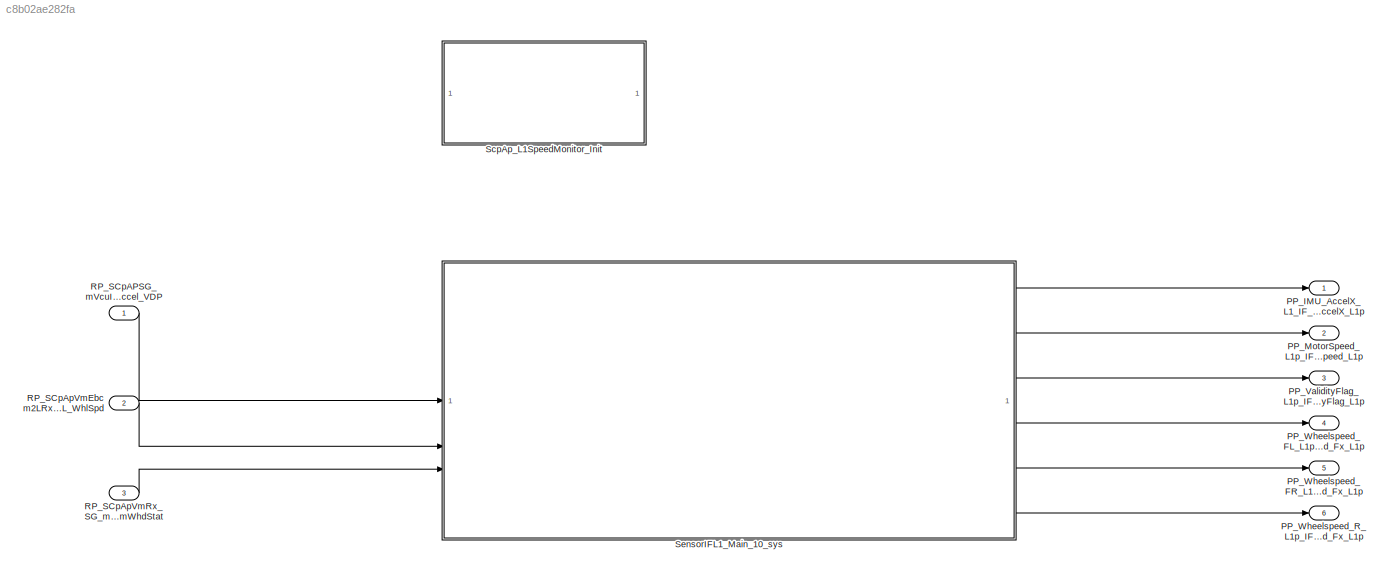
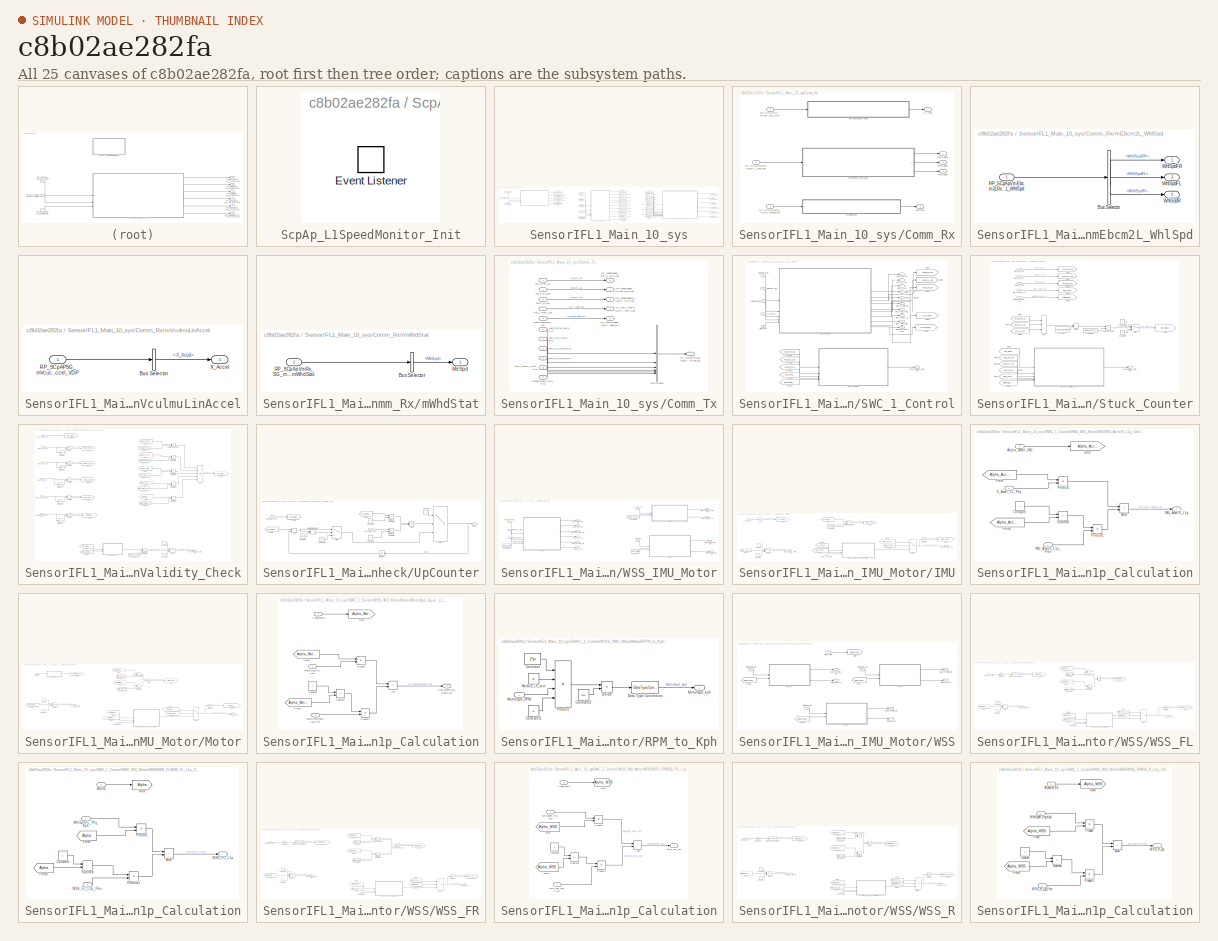
[diagram: thumbnail index - all 25 canvases of the model, root first then tree order]
MODEL slx_c8b02ae282fa
KIND model
CONFIG AbsTol = auto
CONFIG EnableMultiTasking = off
CONFIG FixedStep = 0.01
CONFIG MaxStep = auto
CONFIG MinStep = auto
CONFIG RelTol = 1e-3
CONFIG SampleTimeConstraint = Unconstrained
CONFIG SolverName = FixedStepDiscrete
CONFIG StartTime = 0.0
CONFIG StopTime = 10.0
WORKSPACE source: mxarray member
WORKSPACE Accel_Max: Simulink.Parameter (value not decoded)
WORKSPACE Alpha_Accel_IMU: Simulink.Parameter (value not decoded)
WORKSPACE Alpha_Motor: Simulink.Parameter (value not decoded)
WORKSPACE Alpha_WSS: Simulink.Parameter (value not decoded)
WORKSPACE Motor_Spd_Max: Simulink.Parameter (value not decoded)
WORKSPACE Motor_Spd_Min: Simulink.Parameter (value not decoded)
BLOCK [Outport] PP_IMU_AccelX_L1_IF_IMU_AccelX_L1p
  OutDataTypeStr = single
  PortDimensions = 1
  SamplingMode = Sample based
  SignalType = real
BLOCK [Outport] PP_MotorSpeed_L1p_IF_MotorSpeed_L1p
  OutDataTypeStr = uint8
  Port = 2
  PortDimensions = 1
  SamplingMode = Sample based
  SignalType = real
BLOCK [Outport] PP_ValidityFlag_L1p_IF_ValidityFlag_L1p
  BusOutputAsStruct = on
  OutDataTypeStr = Bus: IF_ValidityFlag_L1p_IDT
  Port = 3
  PortDimensions = 1
  SamplingMode = Sample based
BLOCK [Outport] PP_Wheelspeed_FL_L1p_IF_Wheelspeed_Fx_L1p
  OutDataTypeStr = uint16
  Port = 4
  PortDimensions = 1
  SamplingMode = Sample based
  SignalType = real
BLOCK [Outport] PP_Wheelspeed_FR_L1p_IF_Wheelspeed_Fx_L1p
  OutDataTypeStr = uint16
  Port = 5
  PortDimensions = 1
  SamplingMode = Sample based
  SignalType = real
BLOCK [Outport] PP_Wheelspeed_R_L1p_IF_Wheelspeed_Fx_L1p
  OutDataTypeStr = uint16
  Port = 6
  PortDimensions = 1
  SamplingMode = Sample based
  SignalType = real
BLOCK [Inport] RP_SCpAPSG_mVcuImuLinAccel_SG_mVcuImuLinAccel_VDP
  BusOutputAsStruct = on
  OutDataTypeStr = Bus: SG_mVcuImuLinAccel_IDT
  PortDimensions = 1
  SamplingMode = Sample based
BLOCK [Inport] RP_SCpApVmEbcm2LRx_SG_mEbcm2L_WhlSpd_SG_mEbcm2L_WhlSpd
  BusOutputAsStruct = on
  OutDataTypeStr = Bus: SG_mEbcm2L_WhlSpd_IDT_E2E
  Port = 2
  PortDimensions = 1
  SamplingMode = Sample based
BLOCK [Inport] RP_SCpApVmRx_SG_mWhdStat_SG_mWhdStat
  BusOutputAsStruct = on
  OutDataTypeStr = Bus: SG_mWhdStat_IDT_E2E
  Port = 3
  PortDimensions = 1
  SamplingMode = Sample based
BLOCK [SubSystem] ScpAp_L1SpeedMonitor_Init
BLOCK [EventListener] ScpAp_L1SpeedMonitor_Init/Event Listener
  EventName = reset
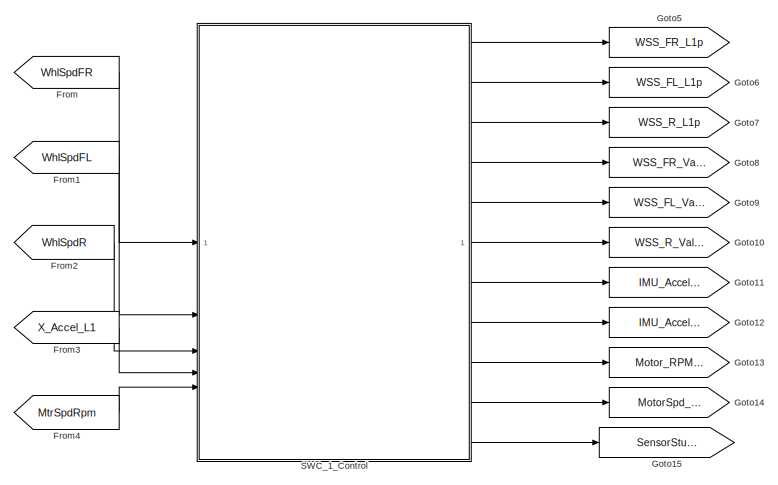
[diagram: SensorIFL1_Main_10_sys - part 1/3, center side, full height]
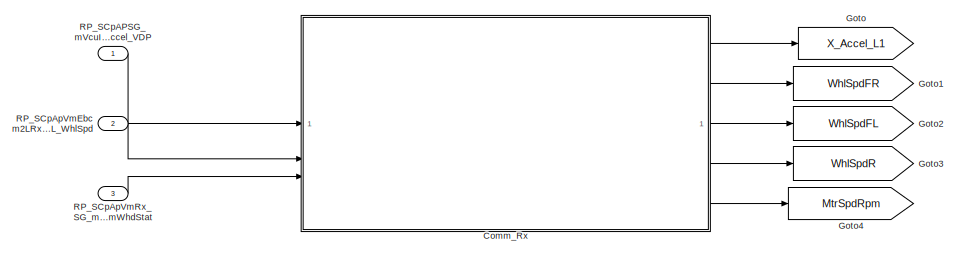
[diagram: SensorIFL1_Main_10_sys - part 2/3, top left region]
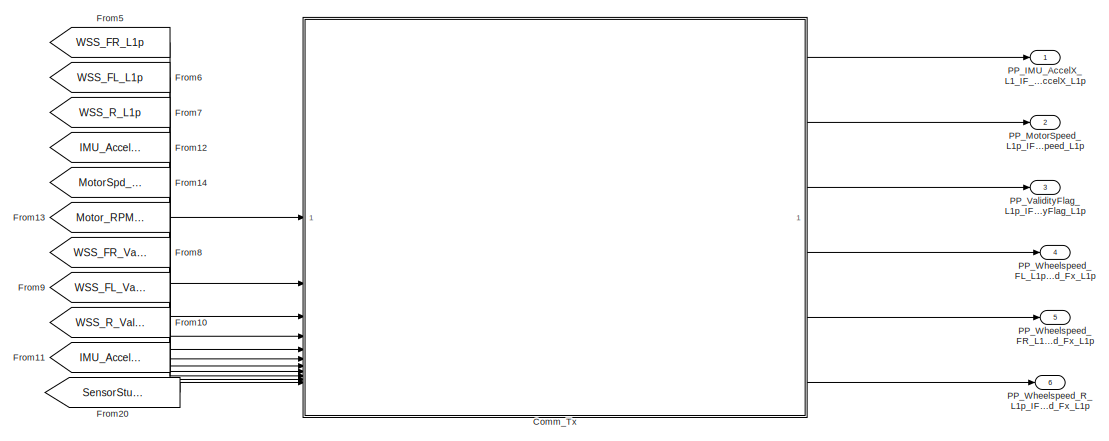
[diagram: SensorIFL1_Main_10_sys - part 3/3, right side, full height]
BLOCK [SubSystem] SensorIFL1_Main_10_sys
  SystemSampleTime = 0.01
  TreatAsAtomicUnit = on
BLOCK [SubSystem] SensorIFL1_Main_10_sys/Comm_Rx
  TreatAsAtomicUnit = on
BLOCK [Outport] SensorIFL1_Main_10_sys/Comm_Rx/MtrSpd
  Port = 5
BLOCK [Inport] SensorIFL1_Main_10_sys/Comm_Rx/RP_SCpAPSG_mVcuImuLinAccel_SG_mVcuImuLinAccel_VDP
BLOCK [Inport] SensorIFL1_Main_10_sys/Comm_Rx/RP_SCpApVmEbcm2LRx_SG_mEbcm2L_WhlSpd_SG_mEbcm2L_WhlSpd
  Port = 2
BLOCK [Inport] SensorIFL1_Main_10_sys/Comm_Rx/RP_SCpApVmRx_SG_mWhdStat_SG_mWhdStat
  Port = 3
BLOCK [Outport] SensorIFL1_Main_10_sys/Comm_Rx/WhlSpdFL
  Port = 3
BLOCK [Outport] SensorIFL1_Main_10_sys/Comm_Rx/WhlSpdFR
  Port = 2
BLOCK [Outport] SensorIFL1_Main_10_sys/Comm_Rx/WhlSpdR
  Port = 4
BLOCK [Outport] SensorIFL1_Main_10_sys/Comm_Rx/X_Accel
BLOCK [SubSystem] SensorIFL1_Main_10_sys/Comm_Rx/mEbcm2L_WhlSpd
  TreatAsAtomicUnit = on
BLOCK [BusSelector] SensorIFL1_Main_10_sys/Comm_Rx/mEbcm2L_WhlSpd/Bus Selector
  OutputSignals = WhlSpdFR,WhlSpdFL,WhlSpdR
BLOCK [Inport] SensorIFL1_Main_10_sys/Comm_Rx/mEbcm2L_WhlSpd/RP_SCpApVmEbcm2LRx_SG_mEbcm2L_WhlSpd_SG_mEbcm2L_WhlSpd
BLOCK [Outport] SensorIFL1_Main_10_sys/Comm_Rx/mEbcm2L_WhlSpd/WhlSpdFL
  Port = 2
BLOCK [Outport] SensorIFL1_Main_10_sys/Comm_Rx/mEbcm2L_WhlSpd/WhlSpdFR
BLOCK [Outport] SensorIFL1_Main_10_sys/Comm_Rx/mEbcm2L_WhlSpd/WhlSpdR
  Port = 3
BLOCK [SubSystem] SensorIFL1_Main_10_sys/Comm_Rx/mVculmuLinAccel
  TreatAsAtomicUnit = on
BLOCK [BusSelector] SensorIFL1_Main_10_sys/Comm_Rx/mVculmuLinAccel/Bus Selector
  OutputSignals = X_Accel
BLOCK [Inport] SensorIFL1_Main_10_sys/Comm_Rx/mVculmuLinAccel/RP_SCpAPSG_mVcuImuLinAccel_SG_mVcuImuLinAccel_VDP
BLOCK [Outport] SensorIFL1_Main_10_sys/Comm_Rx/mVculmuLinAccel/X_Accel
BLOCK [SubSystem] SensorIFL1_Main_10_sys/Comm_Rx/mWhdStat
  TreatAsAtomicUnit = on
BLOCK [BusSelector] SensorIFL1_Main_10_sys/Comm_Rx/mWhdStat/Bus Selector
  OutputSignals = MtrSpd
BLOCK [Outport] SensorIFL1_Main_10_sys/Comm_Rx/mWhdStat/MtrSpd
BLOCK [Inport] SensorIFL1_Main_10_sys/Comm_Rx/mWhdStat/RP_SCpApVmRx_SG_mWhdStat_SG_mWhdStat
BLOCK [SubSystem] SensorIFL1_Main_10_sys/Comm_Tx
  TreatAsAtomicUnit = on
BLOCK [BusCreator] SensorIFL1_Main_10_sys/Comm_Tx/Bus Creator
  DisplayOption = bar
  InheritFromInputs = on
  Inputs = 6
BLOCK [Inport] SensorIFL1_Main_10_sys/Comm_Tx/IMU_AccelX_L1p
  Port = 4
BLOCK [Inport] SensorIFL1_Main_10_sys/Comm_Tx/IMU_AccelX_Valid_Flg
  Port = 10
BLOCK [Inport] SensorIFL1_Main_10_sys/Comm_Tx/MotorSpd_Equiv_L1p
  Port = 5
BLOCK [Inport] SensorIFL1_Main_10_sys/Comm_Tx/Motor_RPM_Valid_Flg
  Port = 6
BLOCK [Outport] SensorIFL1_Main_10_sys/Comm_Tx/PP_IMU_AccelX_L1_IF_IMU_AccelX_L1p
BLOCK [Outport] SensorIFL1_Main_10_sys/Comm_Tx/PP_MotorSpeed_L1p_IF_MotorSpeed_L1p
  Port = 2
BLOCK [Outport] SensorIFL1_Main_10_sys/Comm_Tx/PP_ValidityFlag_L1p_IF_ValidityFlag_L1p
  Port = 3
BLOCK [Outport] SensorIFL1_Main_10_sys/Comm_Tx/PP_Wheelspeed_FL_L1p_IF_Wheelspeed_Fx_L1p
  Port = 4
BLOCK [Outport] SensorIFL1_Main_10_sys/Comm_Tx/PP_Wheelspeed_FR_L1p_IF_Wheelspeed_Fx_L1p
  Port = 5
BLOCK [Outport] SensorIFL1_Main_10_sys/Comm_Tx/PP_Wheelspeed_R_L1p_IF_Wheelspeed_Fx_L1p
  Port = 6
BLOCK [Inport] SensorIFL1_Main_10_sys/Comm_Tx/SensorStuck_Valid_Flg
  Port = 11
BLOCK [Inport] SensorIFL1_Main_10_sys/Comm_Tx/WSS_FL_L1p
  Port = 2
BLOCK [Inport] SensorIFL1_Main_10_sys/Comm_Tx/WSS_FL_Valid_Flg
  Port = 8
BLOCK [Inport] SensorIFL1_Main_10_sys/Comm_Tx/WSS_FR_L1p
BLOCK [Inport] SensorIFL1_Main_10_sys/Comm_Tx/WSS_FR_Valid_Flg
  Port = 7
BLOCK [Inport] SensorIFL1_Main_10_sys/Comm_Tx/WSS_R_L1p
  Port = 3
BLOCK [Inport] SensorIFL1_Main_10_sys/Comm_Tx/WSS_R_Valid_Flg
  Port = 9
BLOCK [From] SensorIFL1_Main_10_sys/From
  GotoTag = WhlSpdFR
BLOCK [From] SensorIFL1_Main_10_sys/From1
  GotoTag = WhlSpdFL
BLOCK [From] SensorIFL1_Main_10_sys/From10
  GotoTag = WSS_R_Valid_Flg
BLOCK [From] SensorIFL1_Main_10_sys/From11
  GotoTag = IMU_AccelX_Valid_Flg
BLOCK [From] SensorIFL1_Main_10_sys/From12
  GotoTag = IMU_AccelX_L1p
BLOCK [From] SensorIFL1_Main_10_sys/From13
  GotoTag = Motor_RPM_Vlaid_Flg
BLOCK [From] SensorIFL1_Main_10_sys/From14
  GotoTag = MotorSpd_Equiv_L1p
BLOCK [From] SensorIFL1_Main_10_sys/From2
  GotoTag = WhlSpdR
BLOCK [From] SensorIFL1_Main_10_sys/From20
  GotoTag = SensorStuck_Valid_Flg
BLOCK [From] SensorIFL1_Main_10_sys/From3
  GotoTag = X_Accel_L1
BLOCK [From] SensorIFL1_Main_10_sys/From4
  GotoTag = MtrSpdRpm
BLOCK [From] SensorIFL1_Main_10_sys/From5
  GotoTag = WSS_FR_L1p
BLOCK [From] SensorIFL1_Main_10_sys/From6
  GotoTag = WSS_FL_L1p
BLOCK [From] SensorIFL1_Main_10_sys/From7
  GotoTag = WSS_R_L1p
BLOCK [From] SensorIFL1_Main_10_sys/From8
  GotoTag = WSS_FR_Valid_Flg
BLOCK [From] SensorIFL1_Main_10_sys/From9
  GotoTag = WSS_FL_Valid_Flg
BLOCK [Goto] SensorIFL1_Main_10_sys/Goto
  GotoTag = X_Accel_L1
BLOCK [Goto] SensorIFL1_Main_10_sys/Goto1
  GotoTag = WhlSpdFR
BLOCK [Goto] SensorIFL1_Main_10_sys/Goto10
  GotoTag = WSS_R_Valid_Flg
BLOCK [Goto] SensorIFL1_Main_10_sys/Goto11
  GotoTag = IMU_AccelX_Valid_Flg
BLOCK [Goto] SensorIFL1_Main_10_sys/Goto12
  GotoTag = IMU_AccelX_L1p
BLOCK [Goto] SensorIFL1_Main_10_sys/Goto13
  GotoTag = Motor_RPM_Vlaid_Flg
BLOCK [Goto] SensorIFL1_Main_10_sys/Goto14
  GotoTag = MotorSpd_Equiv_L1p
BLOCK [Goto] SensorIFL1_Main_10_sys/Goto15
  GotoTag = SensorStuck_Valid_Flg
BLOCK [Goto] SensorIFL1_Main_10_sys/Goto2
  GotoTag = WhlSpdFL
BLOCK [Goto] SensorIFL1_Main_10_sys/Goto3
  GotoTag = WhlSpdR
BLOCK [Goto] SensorIFL1_Main_10_sys/Goto4
  GotoTag = MtrSpdRpm
BLOCK [Goto] SensorIFL1_Main_10_sys/Goto5
  GotoTag = WSS_FR_L1p
BLOCK [Goto] SensorIFL1_Main_10_sys/Goto6
  GotoTag = WSS_FL_L1p
BLOCK [Goto] SensorIFL1_Main_10_sys/Goto7
  GotoTag = WSS_R_L1p
BLOCK [Goto] SensorIFL1_Main_10_sys/Goto8
  GotoTag = WSS_FR_Valid_Flg
BLOCK [Goto] SensorIFL1_Main_10_sys/Goto9
  GotoTag = WSS_FL_Valid_Flg
BLOCK [Outport] SensorIFL1_Main_10_sys/PP_IMU_AccelX_L1_IF_IMU_AccelX_L1p
BLOCK [Outport] SensorIFL1_Main_10_sys/PP_MotorSpeed_L1p_IF_MotorSpeed_L1p
  Port = 2
BLOCK [Outport] SensorIFL1_Main_10_sys/PP_ValidityFlag_L1p_IF_ValidityFlag_L1p
  Port = 3
BLOCK [Outport] SensorIFL1_Main_10_sys/PP_Wheelspeed_FL_L1p_IF_Wheelspeed_Fx_L1p
  Port = 4
BLOCK [Outport] SensorIFL1_Main_10_sys/PP_Wheelspeed_FR_L1p_IF_Wheelspeed_Fx_L1p
  Port = 5
BLOCK [Outport] SensorIFL1_Main_10_sys/PP_Wheelspeed_R_L1p_IF_Wheelspeed_Fx_L1p
  Port = 6
BLOCK [Inport] SensorIFL1_Main_10_sys/RP_SCpAPSG_mVcuImuLinAccel_SG_mVcuImuLinAccel_VDP
BLOCK [Inport] SensorIFL1_Main_10_sys/RP_SCpApVmEbcm2LRx_SG_mEbcm2L_WhlSpd_SG_mEbcm2L_WhlSpd
  Port = 2
BLOCK [Inport] SensorIFL1_Main_10_sys/RP_SCpApVmRx_SG_mWhdStat_SG_mWhdStat
  Port = 3
BLOCK [SubSystem] SensorIFL1_Main_10_sys/SWC_1_Control
  TreatAsAtomicUnit = on
BLOCK [From] SensorIFL1_Main_10_sys/SWC_1_Control/From15
  GotoTag = WSS_FR_L1p
BLOCK [From] SensorIFL1_Main_10_sys/SWC_1_Control/From16
  GotoTag = WSS_FL_L1p
BLOCK [From] SensorIFL1_Main_10_sys/SWC_1_Control/From17
  GotoTag = WSS_R_L1p
BLOCK [From] SensorIFL1_Main_10_sys/SWC_1_Control/From18
  GotoTag = IMU_AccelX_L1p
BLOCK [From] SensorIFL1_Main_10_sys/SWC_1_Control/From19
  GotoTag = MotorSpd_Equiv_L1p
BLOCK [Goto] SensorIFL1_Main_10_sys/SWC_1_Control/Goto
  GotoTag = WSS_R_L1p
BLOCK [Goto] SensorIFL1_Main_10_sys/SWC_1_Control/Goto1
  GotoTag = WSS_FL_L1p
BLOCK [Goto] SensorIFL1_Main_10_sys/SWC_1_Control/Goto2
  GotoTag = MotorSpd_Equiv_L1p
BLOCK [Goto] SensorIFL1_Main_10_sys/SWC_1_Control/Goto3
  GotoTag = IMU_AccelX_L1p
BLOCK [Goto] SensorIFL1_Main_10_sys/SWC_1_Control/Goto4
  GotoTag = WSS_FR_L1p
BLOCK [Outport] SensorIFL1_Main_10_sys/SWC_1_Control/IMU_AccelX_L1p
  Port = 8
BLOCK [Outport] SensorIFL1_Main_10_sys/SWC_1_Control/IMU_AccelX_Valid_Flg
  Port = 7
BLOCK [Inport] SensorIFL1_Main_10_sys/SWC_1_Control/MotorRpm
  Port = 5
BLOCK [Outport] SensorIFL1_Main_10_sys/SWC_1_Control/MotorSpd_Equiv_L1p1
  Port = 10
BLOCK [Outport] SensorIFL1_Main_10_sys/SWC_1_Control/Motor_RPM_Vlaid_Flg
  Port = 9
BLOCK [Outport] SensorIFL1_Main_10_sys/SWC_1_Control/SensorStuck_Valid_Flg
  Port = 11
BLOCK [SubSystem] SensorIFL1_Main_10_sys/SWC_1_Control/Stuck_Counter
  TreatAsAtomicUnit = on
BLOCK [Constant] SensorIFL1_Main_10_sys/SWC_1_Control/Stuck_Counter/Constant
  Value = WSS_Avg_Spd
BLOCK [Constant] SensorIFL1_Main_10_sys/SWC_1_Control/Stuck_Counter/Constant1
  Value = Wheel_Spd_Th
BLOCK [Constant] SensorIFL1_Main_10_sys/SWC_1_Control/Stuck_Counter/Constant2
  OutDataTypeStr = boolean
BLOCK [Constant] SensorIFL1_Main_10_sys/SWC_1_Control/Stuck_Counter/Constant3
  OutDataTypeStr = boolean
  Value = 0
BLOCK [Product] SensorIFL1_Main_10_sys/SWC_1_Control/Stuck_Counter/Divide
  Inputs = */
BLOCK [From] SensorIFL1_Main_10_sys/SWC_1_Control/Stuck_Counter/From
  GotoTag = WSS_FR_L1p
BLOCK [From] SensorIFL1_Main_10_sys/SWC_1_Control/Stuck_Counter/From1
  GotoTag = WSS_FL_L1p
BLOCK [From] SensorIFL1_Main_10_sys/SWC_1_Control/Stuck_Counter/From2
  GotoTag = WSS_R_L1p
BLOCK [From] SensorIFL1_Main_10_sys/SWC_1_Control/Stuck_Counter/From3
  GotoTag = Chk_Stuck_Cnt
BLOCK [From] SensorIFL1_Main_10_sys/SWC_1_Control/Stuck_Counter/From4
  GotoTag = WSS_FR_L1p
BLOCK [From] SensorIFL1_Main_10_sys/SWC_1_Control/Stuck_Counter/From5
  GotoTag = WSS_FL_L1p
BLOCK [From] SensorIFL1_Main_10_sys/SWC_1_Control/Stuck_Counter/From6
  GotoTag = WSS_R_L1p
BLOCK [From] SensorIFL1_Main_10_sys/SWC_1_Control/Stuck_Counter/From7
  GotoTag = IMU_AccelX_L1p
BLOCK [From] SensorIFL1_Main_10_sys/SWC_1_Control/Stuck_Counter/From8
  GotoTag = MotorSpd_Equiv_L1p
BLOCK [Goto] SensorIFL1_Main_10_sys/SWC_1_Control/Stuck_Counter/Goto
  GotoTag = WSS_FR_L1p
BLOCK [Goto] SensorIFL1_Main_10_sys/SWC_1_Control/Stuck_Counter/Goto1
  GotoTag = WSS_FL_L1p
BLOCK [Goto] SensorIFL1_Main_10_sys/SWC_1_Control/Stuck_Counter/Goto2
  GotoTag = WSS_R_L1p
BLOCK [Goto] SensorIFL1_Main_10_sys/SWC_1_Control/Stuck_Counter/Goto3
  GotoTag = IMU_AccelX_L1p
BLOCK [Goto] SensorIFL1_Main_10_sys/SWC_1_Control/Stuck_Counter/Goto4
  GotoTag = MotorSpd_Equiv_L1p
BLOCK [Goto] SensorIFL1_Main_10_sys/SWC_1_Control/Stuck_Counter/Goto5
  GotoTag = Chk_Stuck_Cnt
BLOCK [Inport] SensorIFL1_Main_10_sys/SWC_1_Control/Stuck_Counter/IMU_AccelX_L1p
  Port = 4
BLOCK [Inport] SensorIFL1_Main_10_sys/SWC_1_Control/Stuck_Counter/MotorSpd_Equiv_L1p
  Port = 5
BLOCK [RelationalOperator] SensorIFL1_Main_10_sys/SWC_1_Control/Stuck_Counter/Relational Operator
  InputSameDT = off
  Operator = >
  OutDataTypeStr = boolean
  RndMeth = Simplest
BLOCK [Outport] SensorIFL1_Main_10_sys/SWC_1_Control/Stuck_Counter/SensorStuck_Valid_Flg
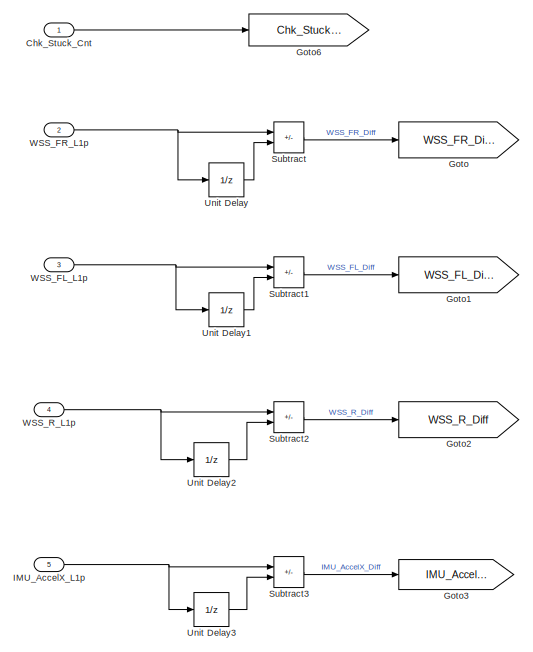
[diagram: SensorIFL1_Main_10_sys/SWC_1_Control/Stuck_Counter/Stuck_Cnt_Validity_Check - part 1/3, top left region]
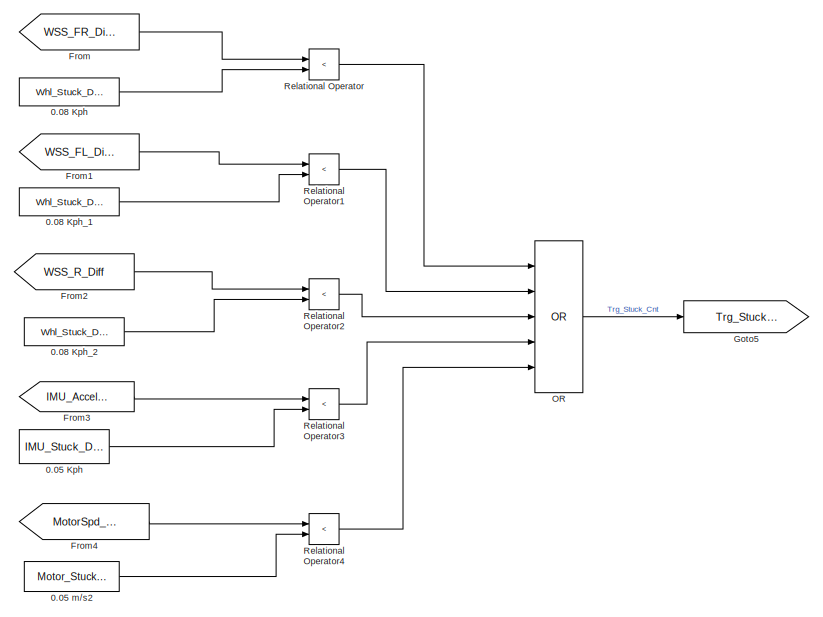
[diagram: SensorIFL1_Main_10_sys/SWC_1_Control/Stuck_Counter/Stuck_Cnt_Validity_Check - part 2/3, top right region]
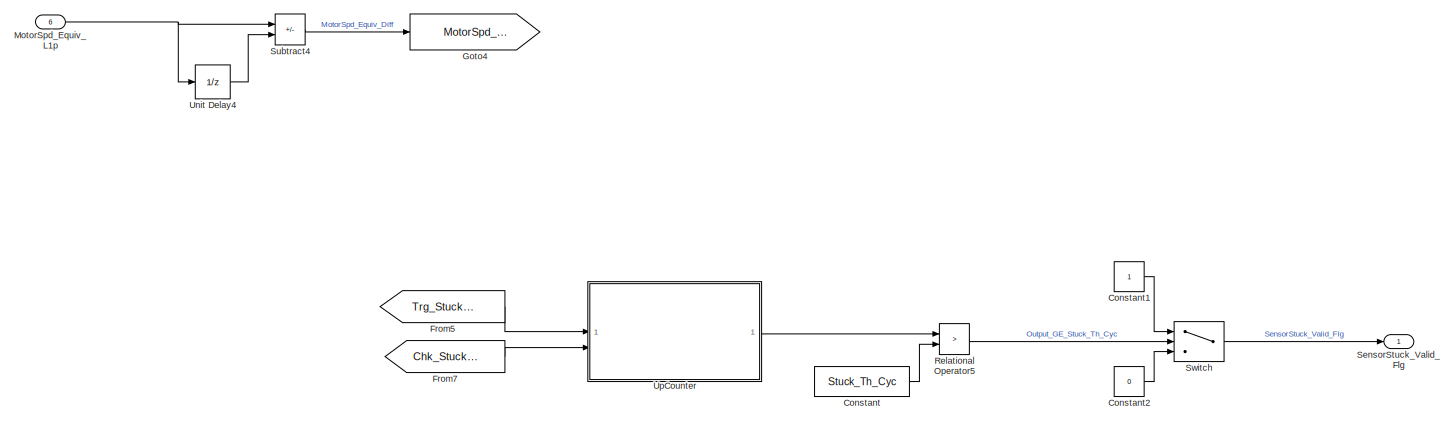
[diagram: SensorIFL1_Main_10_sys/SWC_1_Control/Stuck_Counter/Stuck_Cnt_Validity_Check - part 3/3, full width, bottom band]
BLOCK [SubSystem] SensorIFL1_Main_10_sys/SWC_1_Control/Stuck_Counter/Stuck_Cnt_Validity_Check
  TreatAsAtomicUnit = on
BLOCK [Constant] SensorIFL1_Main_10_sys/SWC_1_Control/Stuck_Counter/Stuck_Cnt_Validity_Check/0.05 Kph
  Value = IMU_Stuck_Delta
BLOCK [Constant] SensorIFL1_Main_10_sys/SWC_1_Control/Stuck_Counter/Stuck_Cnt_Validity_Check/0.05 m//s2
  Value = Motor_Stuck_Delta
BLOCK [Constant] SensorIFL1_Main_10_sys/SWC_1_Control/Stuck_Counter/Stuck_Cnt_Validity_Check/0.08 Kph
  Value = Whl_Stuck_Delta
BLOCK [Constant] SensorIFL1_Main_10_sys/SWC_1_Control/Stuck_Counter/Stuck_Cnt_Validity_Check/0.08 Kph_1
  Value = Whl_Stuck_Delta
BLOCK [Constant] SensorIFL1_Main_10_sys/SWC_1_Control/Stuck_Counter/Stuck_Cnt_Validity_Check/0.08 Kph_2
  Value = Whl_Stuck_Delta
BLOCK [Inport] SensorIFL1_Main_10_sys/SWC_1_Control/Stuck_Counter/Stuck_Cnt_Validity_Check/Chk_Stuck_Cnt
BLOCK [Constant] SensorIFL1_Main_10_sys/SWC_1_Control/Stuck_Counter/Stuck_Cnt_Validity_Check/Constant
  Value = Stuck_Th_Cyc
BLOCK [Constant] SensorIFL1_Main_10_sys/SWC_1_Control/Stuck_Counter/Stuck_Cnt_Validity_Check/Constant1
  OutDataTypeStr = boolean
BLOCK [Constant] SensorIFL1_Main_10_sys/SWC_1_Control/Stuck_Counter/Stuck_Cnt_Validity_Check/Constant2
  OutDataTypeStr = boolean
  Value = 0
BLOCK [From] SensorIFL1_Main_10_sys/SWC_1_Control/Stuck_Counter/Stuck_Cnt_Validity_Check/From
  GotoTag = WSS_FR_Diff
BLOCK [From] SensorIFL1_Main_10_sys/SWC_1_Control/Stuck_Counter/Stuck_Cnt_Validity_Check/From1
  GotoTag = WSS_FL_Diff
BLOCK [From] SensorIFL1_Main_10_sys/SWC_1_Control/Stuck_Counter/Stuck_Cnt_Validity_Check/From2
  GotoTag = WSS_R_Diff
BLOCK [From] SensorIFL1_Main_10_sys/SWC_1_Control/Stuck_Counter/Stuck_Cnt_Validity_Check/From3
  GotoTag = IMU_AccelX_Diff
BLOCK [From] SensorIFL1_Main_10_sys/SWC_1_Control/Stuck_Counter/Stuck_Cnt_Validity_Check/From4
  GotoTag = MotorSpd_Equiv_Diff
BLOCK [From] SensorIFL1_Main_10_sys/SWC_1_Control/Stuck_Counter/Stuck_Cnt_Validity_Check/From5
  GotoTag = Trg_Stuck_Cnt
BLOCK [From] SensorIFL1_Main_10_sys/SWC_1_Control/Stuck_Counter/Stuck_Cnt_Validity_Check/From7
  GotoTag = Chk_Stuck_Cnt
BLOCK [Goto] SensorIFL1_Main_10_sys/SWC_1_Control/Stuck_Counter/Stuck_Cnt_Validity_Check/Goto
  GotoTag = WSS_FR_Diff
BLOCK [Goto] SensorIFL1_Main_10_sys/SWC_1_Control/Stuck_Counter/Stuck_Cnt_Validity_Check/Goto1
  GotoTag = WSS_FL_Diff
BLOCK [Goto] SensorIFL1_Main_10_sys/SWC_1_Control/Stuck_Counter/Stuck_Cnt_Validity_Check/Goto2
  GotoTag = WSS_R_Diff
BLOCK [Goto] SensorIFL1_Main_10_sys/SWC_1_Control/Stuck_Counter/Stuck_Cnt_Validity_Check/Goto3
  GotoTag = IMU_AccelX_Diff
BLOCK [Goto] SensorIFL1_Main_10_sys/SWC_1_Control/Stuck_Counter/Stuck_Cnt_Validity_Check/Goto4
  GotoTag = MotorSpd_Equiv_Diff
BLOCK [Goto] SensorIFL1_Main_10_sys/SWC_1_Control/Stuck_Counter/Stuck_Cnt_Validity_Check/Goto5
  GotoTag = Trg_Stuck_Cnt
BLOCK [Goto] SensorIFL1_Main_10_sys/SWC_1_Control/Stuck_Counter/Stuck_Cnt_Validity_Check/Goto6
  GotoTag = Chk_Stuck_Cnt
BLOCK [Inport] SensorIFL1_Main_10_sys/SWC_1_Control/Stuck_Counter/Stuck_Cnt_Validity_Check/IMU_AccelX_L1p
  Port = 5
BLOCK [Inport] SensorIFL1_Main_10_sys/SWC_1_Control/Stuck_Counter/Stuck_Cnt_Validity_Check/MotorSpd_Equiv_L1p
  Port = 6
BLOCK [Logic] SensorIFL1_Main_10_sys/SWC_1_Control/Stuck_Counter/Stuck_Cnt_Validity_Check/OR
  AllPortsSameDT = off
  IconShape = distinctive
  Inputs = 5
  Operator = OR
  OutDataTypeStr = boolean
BLOCK [RelationalOperator] SensorIFL1_Main_10_sys/SWC_1_Control/Stuck_Counter/Stuck_Cnt_Validity_Check/Relational Operator
  InputSameDT = off
  Operator = <
  OutDataTypeStr = boolean
  RndMeth = Simplest
BLOCK [RelationalOperator] SensorIFL1_Main_10_sys/SWC_1_Control/Stuck_Counter/Stuck_Cnt_Validity_Check/Relational Operator1
  InputSameDT = off
  Operator = <
  OutDataTypeStr = boolean
  RndMeth = Simplest
BLOCK [RelationalOperator] SensorIFL1_Main_10_sys/SWC_1_Control/Stuck_Counter/Stuck_Cnt_Validity_Check/Relational Operator2
  InputSameDT = off
  Operator = <
  OutDataTypeStr = boolean
  RndMeth = Simplest
BLOCK [RelationalOperator] SensorIFL1_Main_10_sys/SWC_1_Control/Stuck_Counter/Stuck_Cnt_Validity_Check/Relational Operator3
  InputSameDT = off
  Operator = <
  OutDataTypeStr = boolean
  RndMeth = Simplest
BLOCK [RelationalOperator] SensorIFL1_Main_10_sys/SWC_1_Control/Stuck_Counter/Stuck_Cnt_Validity_Check/Relational Operator4
  InputSameDT = off
  Operator = <
  OutDataTypeStr = boolean
  RndMeth = Simplest
BLOCK [RelationalOperator] SensorIFL1_Main_10_sys/SWC_1_Control/Stuck_Counter/Stuck_Cnt_Validity_Check/Relational Operator5
  InputSameDT = off
  Operator = >
  OutDataTypeStr = boolean
  RndMeth = Simplest
BLOCK [Outport] SensorIFL1_Main_10_sys/SWC_1_Control/Stuck_Counter/Stuck_Cnt_Validity_Check/SensorStuck_Valid_Flg
BLOCK [Sum] SensorIFL1_Main_10_sys/SWC_1_Control/Stuck_Counter/Stuck_Cnt_Validity_Check/Subtract
  IconShape = rectangular
  Inputs = +-
BLOCK [Sum] SensorIFL1_Main_10_sys/SWC_1_Control/Stuck_Counter/Stuck_Cnt_Validity_Check/Subtract1
  IconShape = rectangular
  Inputs = +-
BLOCK [Sum] SensorIFL1_Main_10_sys/SWC_1_Control/Stuck_Counter/Stuck_Cnt_Validity_Check/Subtract2
  IconShape = rectangular
  Inputs = +-
BLOCK [Sum] SensorIFL1_Main_10_sys/SWC_1_Control/Stuck_Counter/Stuck_Cnt_Validity_Check/Subtract3
  IconShape = rectangular
  Inputs = +-
BLOCK [Sum] SensorIFL1_Main_10_sys/SWC_1_Control/Stuck_Counter/Stuck_Cnt_Validity_Check/Subtract4
  IconShape = rectangular
  Inputs = +-
BLOCK [Switch] SensorIFL1_Main_10_sys/SWC_1_Control/Stuck_Counter/Stuck_Cnt_Validity_Check/Switch
  Criteria = u2 > Threshold
  InputSameDT = off
  SaturateOnIntegerOverflow = off
BLOCK [UnitDelay] SensorIFL1_Main_10_sys/SWC_1_Control/Stuck_Counter/Stuck_Cnt_Validity_Check/Unit Delay
  HasFrameUpgradeWarning = on
  SampleTime = -1
BLOCK [UnitDelay] SensorIFL1_Main_10_sys/SWC_1_Control/Stuck_Counter/Stuck_Cnt_Validity_Check/Unit Delay1
  HasFrameUpgradeWarning = on
  SampleTime = -1
BLOCK [UnitDelay] SensorIFL1_Main_10_sys/SWC_1_Control/Stuck_Counter/Stuck_Cnt_Validity_Check/Unit Delay2
  HasFrameUpgradeWarning = on
  SampleTime = -1
BLOCK [UnitDelay] SensorIFL1_Main_10_sys/SWC_1_Control/Stuck_Counter/Stuck_Cnt_Validity_Check/Unit Delay3
  HasFrameUpgradeWarning = on
  SampleTime = -1
BLOCK [UnitDelay] SensorIFL1_Main_10_sys/SWC_1_Control/Stuck_Counter/Stuck_Cnt_Validity_Check/Unit Delay4
  HasFrameUpgradeWarning = on
  SampleTime = -1
BLOCK [SubSystem] SensorIFL1_Main_10_sys/SWC_1_Control/Stuck_Counter/Stuck_Cnt_Validity_Check/UpCounter
  TreatAsAtomicUnit = on
BLOCK [Sum] SensorIFL1_Main_10_sys/SWC_1_Control/Stuck_Counter/Stuck_Cnt_Validity_Check/UpCounter/Add
  IconShape = rectangular
BLOCK [Inport] SensorIFL1_Main_10_sys/SWC_1_Control/Stuck_Counter/Stuck_Cnt_Validity_Check/UpCounter/Chk_Stuck_Cnt
  Port = 2
BLOCK [Constant] SensorIFL1_Main_10_sys/SWC_1_Control/Stuck_Counter/Stuck_Cnt_Validity_Check/UpCounter/Constant
  Value = 0
BLOCK [Constant] SensorIFL1_Main_10_sys/SWC_1_Control/Stuck_Counter/Stuck_Cnt_Validity_Check/UpCounter/Constant1
  Value = 150
BLOCK [Constant] SensorIFL1_Main_10_sys/SWC_1_Control/Stuck_Counter/Stuck_Cnt_Validity_Check/UpCounter/Constant2
  Value = 150
BLOCK [Constant] SensorIFL1_Main_10_sys/SWC_1_Control/Stuck_Counter/Stuck_Cnt_Validity_Check/UpCounter/Constant3
  Value = 0
BLOCK [Constant] SensorIFL1_Main_10_sys/SWC_1_Control/Stuck_Counter/Stuck_Cnt_Validity_Check/UpCounter/Constant4
  Value = 0
BLOCK [From] SensorIFL1_Main_10_sys/SWC_1_Control/Stuck_Counter/Stuck_Cnt_Validity_Check/UpCounter/From
  GotoTag = Trg_Stuck_Cnt
BLOCK [From] SensorIFL1_Main_10_sys/SWC_1_Control/Stuck_Counter/Stuck_Cnt_Validity_Check/UpCounter/From1
  GotoTag = Trg_Stuck_Cnt
BLOCK [Goto] SensorIFL1_Main_10_sys/SWC_1_Control/Stuck_Counter/Stuck_Cnt_Validity_Check/UpCounter/Goto
  GotoTag = Trg_Stuck_Cnt
BLOCK [Logic] SensorIFL1_Main_10_sys/SWC_1_Control/Stuck_Counter/Stuck_Cnt_Validity_Check/UpCounter/OR
  AllPortsSameDT = off
  IconShape = distinctive
  Operator = OR
  OutDataTypeStr = boolean
BLOCK [Outport] SensorIFL1_Main_10_sys/SWC_1_Control/Stuck_Counter/Stuck_Cnt_Validity_Check/UpCounter/Output
  IconDisplay = Signal name
BLOCK [RelationalOperator] SensorIFL1_Main_10_sys/SWC_1_Control/Stuck_Counter/Stuck_Cnt_Validity_Check/UpCounter/Relational Operator
  InputSameDT = off
  Operator = <
  OutDataTypeStr = boolean
  RndMeth = Simplest
BLOCK [RelationalOperator] SensorIFL1_Main_10_sys/SWC_1_Control/Stuck_Counter/Stuck_Cnt_Validity_Check/UpCounter/Relational Operator1
  InputSameDT = off
  Operator = ==
  OutDataTypeStr = boolean
  RndMeth = Simplest
BLOCK [RelationalOperator] SensorIFL1_Main_10_sys/SWC_1_Control/Stuck_Counter/Stuck_Cnt_Validity_Check/UpCounter/Relational Operator6
  InputSameDT = off
  Operator = ==
  OutDataTypeStr = boolean
  RndMeth = Simplest
BLOCK [Switch] SensorIFL1_Main_10_sys/SWC_1_Control/Stuck_Counter/Stuck_Cnt_Validity_Check/UpCounter/Switch
  Criteria = u2 > Threshold
  InputSameDT = off
  SaturateOnIntegerOverflow = off
BLOCK [Switch] SensorIFL1_Main_10_sys/SWC_1_Control/Stuck_Counter/Stuck_Cnt_Validity_Check/UpCounter/Switch1
  Criteria = u2 > Threshold
  InputSameDT = off
  SaturateOnIntegerOverflow = off
BLOCK [Inport] SensorIFL1_Main_10_sys/SWC_1_Control/Stuck_Counter/Stuck_Cnt_Validity_Check/UpCounter/Trg_Stuck_Cnt
BLOCK [UnitDelay] SensorIFL1_Main_10_sys/SWC_1_Control/Stuck_Counter/Stuck_Cnt_Validity_Check/UpCounter/Unit Delay
  HasFrameUpgradeWarning = on
  SampleTime = -1
BLOCK [Inport] SensorIFL1_Main_10_sys/SWC_1_Control/Stuck_Counter/Stuck_Cnt_Validity_Check/WSS_FL_L1p
  Port = 3
BLOCK [Inport] SensorIFL1_Main_10_sys/SWC_1_Control/Stuck_Counter/Stuck_Cnt_Validity_Check/WSS_FR_L1p
  Port = 2
BLOCK [Inport] SensorIFL1_Main_10_sys/SWC_1_Control/Stuck_Counter/Stuck_Cnt_Validity_Check/WSS_R_L1p
  Port = 4
BLOCK [Sum] SensorIFL1_Main_10_sys/SWC_1_Control/Stuck_Counter/Sum
  IconShape = rectangular
  Inputs = +++
BLOCK [Switch] SensorIFL1_Main_10_sys/SWC_1_Control/Stuck_Counter/Switch
  Criteria = u2 > Threshold
  InputSameDT = off
  SaturateOnIntegerOverflow = off
BLOCK [Inport] SensorIFL1_Main_10_sys/SWC_1_Control/Stuck_Counter/WSS_FL_L1p
  Port = 2
BLOCK [Inport] SensorIFL1_Main_10_sys/SWC_1_Control/Stuck_Counter/WSS_FR_L1p
BLOCK [Inport] SensorIFL1_Main_10_sys/SWC_1_Control/Stuck_Counter/WSS_R_L1p
  Port = 3
BLOCK [Outport] SensorIFL1_Main_10_sys/SWC_1_Control/WSS_FL_L1p1
  Port = 2
BLOCK [Outport] SensorIFL1_Main_10_sys/SWC_1_Control/WSS_FL_Valid_Flg
  Port = 5
BLOCK [Outport] SensorIFL1_Main_10_sys/SWC_1_Control/WSS_FR_L1p1
BLOCK [Outport] SensorIFL1_Main_10_sys/SWC_1_Control/WSS_FR_Valid_Flg
  Port = 4
BLOCK [SubSystem] SensorIFL1_Main_10_sys/SWC_1_Control/WSS_IMU_Motor
  TreatAsAtomicUnit = on
BLOCK [Constant] SensorIFL1_Main_10_sys/SWC_1_Control/WSS_IMU_Motor/Constant
  OutDataTypeStr = double
  Value = Alpha_Motor
BLOCK [Constant] SensorIFL1_Main_10_sys/SWC_1_Control/WSS_IMU_Motor/Constant1
  OutDataTypeStr = double
  Value = Alpha_WSS
BLOCK [Constant] SensorIFL1_Main_10_sys/SWC_1_Control/WSS_IMU_Motor/Constant2
  OutDataTypeStr = double
  Value = Alpha_Accel_IMU
BLOCK [SubSystem] SensorIFL1_Main_10_sys/SWC_1_Control/WSS_IMU_Motor/IMU
  TreatAsAtomicUnit = on
BLOCK [Abs] SensorIFL1_Main_10_sys/SWC_1_Control/WSS_IMU_Motor/IMU/Abs
  SaturateOnIntegerOverflow = off
BLOCK [Inport] SensorIFL1_Main_10_sys/SWC_1_Control/WSS_IMU_Motor/IMU/Alpha_Accel_IMU
  Port = 2
BLOCK [Constant] SensorIFL1_Main_10_sys/SWC_1_Control/WSS_IMU_Motor/IMU/Constant
  OutDataTypeStr = boolean
  Value = 0
BLOCK [Constant] SensorIFL1_Main_10_sys/SWC_1_Control/WSS_IMU_Motor/IMU/Constant1
  OutDataTypeStr = boolean
BLOCK [Constant] SensorIFL1_Main_10_sys/SWC_1_Control/WSS_IMU_Motor/IMU/Constant2
  Value = Accel_Max
BLOCK [From] SensorIFL1_Main_10_sys/SWC_1_Control/WSS_IMU_Motor/IMU/From
  GotoTag = X_Accel_L1_Phy
BLOCK [From] SensorIFL1_Main_10_sys/SWC_1_Control/WSS_IMU_Motor/IMU/From1
  GotoTag = IMU_Accel_Valid
BLOCK [From] SensorIFL1_Main_10_sys/SWC_1_Control/WSS_IMU_Motor/IMU/From2
  GotoTag = IMU_Accel_Valid
BLOCK [From] SensorIFL1_Main_10_sys/SWC_1_Control/WSS_IMU_Motor/IMU/From3
  GotoTag = IMU_AccelX_L1p_Prev
BLOCK [From] SensorIFL1_Main_10_sys/SWC_1_Control/WSS_IMU_Motor/IMU/From4
  GotoTag = X_Accel_L1_Phy
BLOCK [From] SensorIFL1_Main_10_sys/SWC_1_Control/WSS_IMU_Motor/IMU/From5
  GotoTag = IMU_AccelX_L1p_Prev
BLOCK [Goto] SensorIFL1_Main_10_sys/SWC_1_Control/WSS_IMU_Motor/IMU/Goto
  GotoTag = X_Accel_L1_Phy
BLOCK [Goto] SensorIFL1_Main_10_sys/SWC_1_Control/WSS_IMU_Motor/IMU/Goto1
  GotoTag = IMU_Accel_Valid
BLOCK [Goto] SensorIFL1_Main_10_sys/SWC_1_Control/WSS_IMU_Motor/IMU/Goto2
  GotoTag = IMU_AccelX_L1p_Prev
BLOCK [Outport] SensorIFL1_Main_10_sys/SWC_1_Control/WSS_IMU_Motor/IMU/IMU_AccelX_L1p
  Port = 2
BLOCK [SubSystem] SensorIFL1_Main_10_sys/SWC_1_Control/WSS_IMU_Motor/IMU/IMU_AccelX_L1p_Calculation
  TreatAsAtomicUnit = on
BLOCK [Sum] SensorIFL1_Main_10_sys/SWC_1_Control/WSS_IMU_Motor/IMU/IMU_AccelX_L1p_Calculation/Add
  IconShape = rectangular
BLOCK [Inport] SensorIFL1_Main_10_sys/SWC_1_Control/WSS_IMU_Motor/IMU/IMU_AccelX_L1p_Calculation/Alpha_Accel_IMU
  Port = 3
BLOCK [Constant] SensorIFL1_Main_10_sys/SWC_1_Control/WSS_IMU_Motor/IMU/IMU_AccelX_L1p_Calculation/Constant
  OutDataTypeStr = single
BLOCK [From] SensorIFL1_Main_10_sys/SWC_1_Control/WSS_IMU_Motor/IMU/IMU_AccelX_L1p_Calculation/From
  GotoTag = Alpha_Accel_IMU
BLOCK [From] SensorIFL1_Main_10_sys/SWC_1_Control/WSS_IMU_Motor/IMU/IMU_AccelX_L1p_Calculation/From1
  GotoTag = Alpha_Accel_IMU
BLOCK [Goto] SensorIFL1_Main_10_sys/SWC_1_Control/WSS_IMU_Motor/IMU/IMU_AccelX_L1p_Calculation/Goto
  GotoTag = Alpha_Accel_IMU
BLOCK [Outport] SensorIFL1_Main_10_sys/SWC_1_Control/WSS_IMU_Motor/IMU/IMU_AccelX_L1p_Calculation/IMU_AccelX_L1p
BLOCK [Inport] SensorIFL1_Main_10_sys/SWC_1_Control/WSS_IMU_Motor/IMU/IMU_AccelX_L1p_Calculation/IMU_AccelX_L1p_Prev
  Port = 2
BLOCK [Product] SensorIFL1_Main_10_sys/SWC_1_Control/WSS_IMU_Motor/IMU/IMU_AccelX_L1p_Calculation/Product
BLOCK [Product] SensorIFL1_Main_10_sys/SWC_1_Control/WSS_IMU_Motor/IMU/IMU_AccelX_L1p_Calculation/Product1
BLOCK [Sum] SensorIFL1_Main_10_sys/SWC_1_Control/WSS_IMU_Motor/IMU/IMU_AccelX_L1p_Calculation/Subtract
  IconShape = rectangular
  Inputs = +-
BLOCK [Inport] SensorIFL1_Main_10_sys/SWC_1_Control/WSS_IMU_Motor/IMU/IMU_AccelX_L1p_Calculation/X_Accel_L1_Phy
BLOCK [Outport] SensorIFL1_Main_10_sys/SWC_1_Control/WSS_IMU_Motor/IMU/IMU_AccelX_Valid_Flg
BLOCK [RelationalOperator] SensorIFL1_Main_10_sys/SWC_1_Control/WSS_IMU_Motor/IMU/Relational Operator
  InputSameDT = off
  Operator = >
  OutDataTypeStr = boolean
  RndMeth = Simplest
BLOCK [Switch] SensorIFL1_Main_10_sys/SWC_1_Control/WSS_IMU_Motor/IMU/Switch
  Criteria = u2 > Threshold
  InputSameDT = off
  SaturateOnIntegerOverflow = off
BLOCK [Switch] SensorIFL1_Main_10_sys/SWC_1_Control/WSS_IMU_Motor/IMU/Switch1
  Criteria = u2 > Threshold
  InputSameDT = off
  SaturateOnIntegerOverflow = off
BLOCK [UnitDelay] SensorIFL1_Main_10_sys/SWC_1_Control/WSS_IMU_Motor/IMU/Unit Delay
  HasFrameUpgradeWarning = on
  SampleTime = -1
BLOCK [Inport] SensorIFL1_Main_10_sys/SWC_1_Control/WSS_IMU_Motor/IMU/X_Accel_L1
BLOCK [Outport] SensorIFL1_Main_10_sys/SWC_1_Control/WSS_IMU_Motor/IMU_AccelX_L1p
  Port = 8
BLOCK [Outport] SensorIFL1_Main_10_sys/SWC_1_Control/WSS_IMU_Motor/IMU_AccelX_Valid_Flg
  Port = 7
BLOCK [SubSystem] SensorIFL1_Main_10_sys/SWC_1_Control/WSS_IMU_Motor/Motor
  TreatAsAtomicUnit = on
BLOCK [Inport] SensorIFL1_Main_10_sys/SWC_1_Control/WSS_IMU_Motor/Motor/Alpha_Motor
  Port = 2
BLOCK [Constant] SensorIFL1_Main_10_sys/SWC_1_Control/WSS_IMU_Motor/Motor/Constant
  OutDataTypeStr = boolean
  Value = 0
BLOCK [Constant] SensorIFL1_Main_10_sys/SWC_1_Control/WSS_IMU_Motor/Motor/Constant1
  OutDataTypeStr = boolean
BLOCK [From] SensorIFL1_Main_10_sys/SWC_1_Control/WSS_IMU_Motor/Motor/From
  GotoTag = MotorSpd_Phy_Kph
BLOCK [From] SensorIFL1_Main_10_sys/SWC_1_Control/WSS_IMU_Motor/Motor/From1
  GotoTag = MotorSpd_Phy_Kph
BLOCK [From] SensorIFL1_Main_10_sys/SWC_1_Control/WSS_IMU_Motor/Motor/From2
  GotoTag = Motor_Spd_ValidCheck
BLOCK [From] SensorIFL1_Main_10_sys/SWC_1_Control/WSS_IMU_Motor/Motor/From3
  GotoTag = Motor_Spd_ValidCheck
BLOCK [From] SensorIFL1_Main_10_sys/SWC_1_Control/WSS_IMU_Motor/Motor/From4
  GotoTag = MotorSpd_Equiv_L1p_Prev
BLOCK [From] SensorIFL1_Main_10_sys/SWC_1_Control/WSS_IMU_Motor/Motor/From5
  GotoTag = MotorSpd_Phy_Kph
BLOCK [From] SensorIFL1_Main_10_sys/SWC_1_Control/WSS_IMU_Motor/Motor/From6
  GotoTag = MotorSpd_Equiv_L1p_Prev
BLOCK [Goto] SensorIFL1_Main_10_sys/SWC_1_Control/WSS_IMU_Motor/Motor/Goto
  GotoTag = MotorSpd_Phy_Kph
BLOCK [Goto] SensorIFL1_Main_10_sys/SWC_1_Control/WSS_IMU_Motor/Motor/Goto1
  GotoTag = Motor_Spd_ValidCheck
BLOCK [Goto] SensorIFL1_Main_10_sys/SWC_1_Control/WSS_IMU_Motor/Motor/Goto2
  GotoTag = MotorSpd_Equiv_L1p_Prev
BLOCK [Inport] SensorIFL1_Main_10_sys/SWC_1_Control/WSS_IMU_Motor/Motor/MotorRpm
BLOCK [Outport] SensorIFL1_Main_10_sys/SWC_1_Control/WSS_IMU_Motor/Motor/MotorSpd_Equiv_L1p
  Port = 2
BLOCK [SubSystem] SensorIFL1_Main_10_sys/SWC_1_Control/WSS_IMU_Motor/Motor/MotorSpd_Equiv_L1p_Calculation
  TreatAsAtomicUnit = on
BLOCK [Sum] SensorIFL1_Main_10_sys/SWC_1_Control/WSS_IMU_Motor/Motor/MotorSpd_Equiv_L1p_Calculation/Add
  IconShape = rectangular
BLOCK [Inport] SensorIFL1_Main_10_sys/SWC_1_Control/WSS_IMU_Motor/Motor/MotorSpd_Equiv_L1p_Calculation/Alpha_Motor
  Port = 3
BLOCK [Constant] SensorIFL1_Main_10_sys/SWC_1_Control/WSS_IMU_Motor/Motor/MotorSpd_Equiv_L1p_Calculation/Constant
  OutDataTypeStr = uint8
BLOCK [From] SensorIFL1_Main_10_sys/SWC_1_Control/WSS_IMU_Motor/Motor/MotorSpd_Equiv_L1p_Calculation/From
  GotoTag = Alpha_Motor
BLOCK [From] SensorIFL1_Main_10_sys/SWC_1_Control/WSS_IMU_Motor/Motor/MotorSpd_Equiv_L1p_Calculation/From1
  GotoTag = Alpha_Motor
BLOCK [Goto] SensorIFL1_Main_10_sys/SWC_1_Control/WSS_IMU_Motor/Motor/MotorSpd_Equiv_L1p_Calculation/Goto
  GotoTag = Alpha_Motor
BLOCK [Inport] SensorIFL1_Main_10_sys/SWC_1_Control/WSS_IMU_Motor/Motor/MotorSpd_Equiv_L1p_Calculation/MotorSpd_Equiv_L1p_Prev
  Port = 2
BLOCK [Inport] SensorIFL1_Main_10_sys/SWC_1_Control/WSS_IMU_Motor/Motor/MotorSpd_Equiv_L1p_Calculation/MotorSpd_Phy_Kph
BLOCK [Outport] SensorIFL1_Main_10_sys/SWC_1_Control/WSS_IMU_Motor/Motor/MotorSpd_Equiv_L1p_Calculation/New_MotorSpd_Equiv_L1p
BLOCK [Product] SensorIFL1_Main_10_sys/SWC_1_Control/WSS_IMU_Motor/Motor/MotorSpd_Equiv_L1p_Calculation/Product
  OutDataTypeStr = uint8
BLOCK [Product] SensorIFL1_Main_10_sys/SWC_1_Control/WSS_IMU_Motor/Motor/MotorSpd_Equiv_L1p_Calculation/Product1
  OutDataTypeStr = uint8
BLOCK [Sum] SensorIFL1_Main_10_sys/SWC_1_Control/WSS_IMU_Motor/Motor/MotorSpd_Equiv_L1p_Calculation/Subtract
  IconShape = rectangular
  Inputs = +-
  OutDataTypeStr = uint8
BLOCK [Constant] SensorIFL1_Main_10_sys/SWC_1_Control/WSS_IMU_Motor/Motor/Motor_Max_Spd
  Value = Motor_Spd_Max
BLOCK [Constant] SensorIFL1_Main_10_sys/SWC_1_Control/WSS_IMU_Motor/Motor/Motor_Min_Spd
  Value = Motor_Spd_Min
BLOCK [Outport] SensorIFL1_Main_10_sys/SWC_1_Control/WSS_IMU_Motor/Motor/Motor_RPM_Valid_Flg
BLOCK [Logic] SensorIFL1_Main_10_sys/SWC_1_Control/WSS_IMU_Motor/Motor/OR
  AllPortsSameDT = off
  Operator = OR
  OutDataTypeStr = boolean
BLOCK [SubSystem] SensorIFL1_Main_10_sys/SWC_1_Control/WSS_IMU_Motor/Motor/RPM_to_Kph
  TreatAsAtomicUnit = on
BLOCK [Constant] SensorIFL1_Main_10_sys/SWC_1_Control/WSS_IMU_Motor/Motor/RPM_to_Kph/Constant
  Value = 2*pi
BLOCK [Constant] SensorIFL1_Main_10_sys/SWC_1_Control/WSS_IMU_Motor/Motor/RPM_to_Kph/Constant1
  Value = 60
BLOCK [Constant] SensorIFL1_Main_10_sys/SWC_1_Control/WSS_IMU_Motor/Motor/RPM_to_Kph/Constant2
  Value = 1000
BLOCK [DataTypeConversion] SensorIFL1_Main_10_sys/SWC_1_Control/WSS_IMU_Motor/Motor/RPM_to_Kph/Data Type Conversion
  OutDataTypeStr = uint8
  RndMeth = Floor
  SaturateOnIntegerOverflow = off
BLOCK [Product] SensorIFL1_Main_10_sys/SWC_1_Control/WSS_IMU_Motor/Motor/RPM_to_Kph/Divide
  Inputs = */
BLOCK [Inport] SensorIFL1_Main_10_sys/SWC_1_Control/WSS_IMU_Motor/Motor/RPM_to_Kph/MotorSpd_RPM
BLOCK [Outport] SensorIFL1_Main_10_sys/SWC_1_Control/WSS_IMU_Motor/Motor/RPM_to_Kph/MotorSpd_kph
BLOCK [Product] SensorIFL1_Main_10_sys/SWC_1_Control/WSS_IMU_Motor/Motor/RPM_to_Kph/Product
  Inputs = 4
BLOCK [Constant] SensorIFL1_Main_10_sys/SWC_1_Control/WSS_IMU_Motor/Motor/RPM_to_Kph/Radius_in_mm
  Value = 250
BLOCK [RelationalOperator] SensorIFL1_Main_10_sys/SWC_1_Control/WSS_IMU_Motor/Motor/Relational Operator
  InputSameDT = off
  Operator = <
  OutDataTypeStr = boolean
  RndMeth = Simplest
BLOCK [RelationalOperator] SensorIFL1_Main_10_sys/SWC_1_Control/WSS_IMU_Motor/Motor/Relational Operator1
  InputSameDT = off
  Operator = >
  OutDataTypeStr = boolean
  RndMeth = Simplest
BLOCK [Switch] SensorIFL1_Main_10_sys/SWC_1_Control/WSS_IMU_Motor/Motor/Switch
  Criteria = u2 > Threshold
  InputSameDT = off
  SaturateOnIntegerOverflow = off
BLOCK [Switch] SensorIFL1_Main_10_sys/SWC_1_Control/WSS_IMU_Motor/Motor/Switch1
  Criteria = u2 > Threshold
  InputSameDT = off
  OutDataTypeStr = uint8
  SaturateOnIntegerOverflow = off
BLOCK [UnitDelay] SensorIFL1_Main_10_sys/SWC_1_Control/WSS_IMU_Motor/Motor/Unit Delay
  HasFrameUpgradeWarning = on
  SampleTime = -1
BLOCK [Inport] SensorIFL1_Main_10_sys/SWC_1_Control/WSS_IMU_Motor/MotorRpm
  Port = 5
BLOCK [Outport] SensorIFL1_Main_10_sys/SWC_1_Control/WSS_IMU_Motor/MotorSpd_Equiv_L1p
  Port = 10
BLOCK [Outport] SensorIFL1_Main_10_sys/SWC_1_Control/WSS_IMU_Motor/Motor_RPM_Vlaid_Flg
  Port = 9
BLOCK [SubSystem] SensorIFL1_Main_10_sys/SWC_1_Control/WSS_IMU_Motor/WSS
  TreatAsAtomicUnit = on
BLOCK [Inport] SensorIFL1_Main_10_sys/SWC_1_Control/WSS_IMU_Motor/WSS/Alpha_WSS
  OutDataTypeStr = double
  Port = 4
BLOCK [From] SensorIFL1_Main_10_sys/SWC_1_Control/WSS_IMU_Motor/WSS/From
  GotoTag = Alpha_WSS
BLOCK [From] SensorIFL1_Main_10_sys/SWC_1_Control/WSS_IMU_Motor/WSS/From1
  GotoTag = Alpha_WSS
BLOCK [From] SensorIFL1_Main_10_sys/SWC_1_Control/WSS_IMU_Motor/WSS/From2
  GotoTag = Alpha_WSS
BLOCK [Goto] SensorIFL1_Main_10_sys/SWC_1_Control/WSS_IMU_Motor/WSS/Goto
  GotoTag = Alpha_WSS
BLOCK [SubSystem] SensorIFL1_Main_10_sys/SWC_1_Control/WSS_IMU_Motor/WSS/WSS_FL
  TreatAsAtomicUnit = on
BLOCK [Inport] SensorIFL1_Main_10_sys/SWC_1_Control/WSS_IMU_Motor/WSS/WSS_FL/Alpha_WSS
  Port = 2
BLOCK [Constant] SensorIFL1_Main_10_sys/SWC_1_Control/WSS_IMU_Motor/WSS/WSS_FL/Constant
  Value = WhlSpd_Min
BLOCK [Constant] SensorIFL1_Main_10_sys/SWC_1_Control/WSS_IMU_Motor/WSS/WSS_FL/Constant1
  Value = WhlSpd_Max
BLOCK [Constant] SensorIFL1_Main_10_sys/SWC_1_Control/WSS_IMU_Motor/WSS/WSS_FL/Constant2
  OutDataTypeStr = boolean
  Value = 0
BLOCK [Constant] SensorIFL1_Main_10_sys/SWC_1_Control/WSS_IMU_Motor/WSS/WSS_FL/Constant3
  OutDataTypeStr = boolean
BLOCK [DataTypeConversion] SensorIFL1_Main_10_sys/SWC_1_Control/WSS_IMU_Motor/WSS/WSS_FL/Data Type Conversion
  OutDataTypeStr = uint16
  RndMeth = Floor
  SaturateOnIntegerOverflow = off
BLOCK [From] SensorIFL1_Main_10_sys/SWC_1_Control/WSS_IMU_Motor/WSS/WSS_FL/From
  GotoTag = WhlSpdFL_Phy_Kph
BLOCK [From] SensorIFL1_Main_10_sys/SWC_1_Control/WSS_IMU_Motor/WSS/WSS_FL/From1
  GotoTag = WhlSpdFL_Phy_Kph
BLOCK [From] SensorIFL1_Main_10_sys/SWC_1_Control/WSS_IMU_Motor/WSS/WSS_FL/From2
  GotoTag = WhlSpdFL_Valid_Chk
BLOCK [From] SensorIFL1_Main_10_sys/SWC_1_Control/WSS_IMU_Motor/WSS/WSS_FL/From3
  GotoTag = WhlSpdFL_Valid_Chk
BLOCK [From] SensorIFL1_Main_10_sys/SWC_1_Control/WSS_IMU_Motor/WSS/WSS_FL/From4
  GotoTag = WSS_FL_L1p_Prev
BLOCK [From] SensorIFL1_Main_10_sys/SWC_1_Control/WSS_IMU_Motor/WSS/WSS_FL/From5
  GotoTag = WhlSpdFL_Phy_Kph
BLOCK [From] SensorIFL1_Main_10_sys/SWC_1_Control/WSS_IMU_Motor/WSS/WSS_FL/From6
  GotoTag = WSS_FL_L1p_Prev
BLOCK [Goto] SensorIFL1_Main_10_sys/SWC_1_Control/WSS_IMU_Motor/WSS/WSS_FL/Goto
  GotoTag = WhlSpdFL_Phy_Kph
BLOCK [Goto] SensorIFL1_Main_10_sys/SWC_1_Control/WSS_IMU_Motor/WSS/WSS_FL/Goto1
  GotoTag = WhlSpdFL_Valid_Chk
BLOCK [Goto] SensorIFL1_Main_10_sys/SWC_1_Control/WSS_IMU_Motor/WSS/WSS_FL/Goto2
  GotoTag = WSS_FL_L1p_Prev
BLOCK [Logic] SensorIFL1_Main_10_sys/SWC_1_Control/WSS_IMU_Motor/WSS/WSS_FL/OR
  AllPortsSameDT = off
  Operator = OR
  OutDataTypeStr = boolean
BLOCK [RelationalOperator] SensorIFL1_Main_10_sys/SWC_1_Control/WSS_IMU_Motor/WSS/WSS_FL/Relational Operator
  InputSameDT = off
  Operator = <
  OutDataTypeStr = boolean
  RndMeth = Simplest
BLOCK [RelationalOperator] SensorIFL1_Main_10_sys/SWC_1_Control/WSS_IMU_Motor/WSS/WSS_FL/Relational Operator1
  InputSameDT = off
  Operator = >
  OutDataTypeStr = boolean
  RndMeth = Simplest
BLOCK [Switch] SensorIFL1_Main_10_sys/SWC_1_Control/WSS_IMU_Motor/WSS/WSS_FL/Switch
  Criteria = u2 > Threshold
  InputSameDT = off
  SaturateOnIntegerOverflow = off
BLOCK [Switch] SensorIFL1_Main_10_sys/SWC_1_Control/WSS_IMU_Motor/WSS/WSS_FL/Switch1
  Criteria = u2 > Threshold
  InputSameDT = off
  SaturateOnIntegerOverflow = off
BLOCK [UnitDelay] SensorIFL1_Main_10_sys/SWC_1_Control/WSS_IMU_Motor/WSS/WSS_FL/Unit Delay
  HasFrameUpgradeWarning = on
  SampleTime = -1
BLOCK [Outport] SensorIFL1_Main_10_sys/SWC_1_Control/WSS_IMU_Motor/WSS/WSS_FL/WSS_FL_L1p
  Port = 2
BLOCK [SubSystem] SensorIFL1_Main_10_sys/SWC_1_Control/WSS_IMU_Motor/WSS/WSS_FL/WSS_FL_L1p_Calculation
  TreatAsAtomicUnit = on
BLOCK [Sum] SensorIFL1_Main_10_sys/SWC_1_Control/WSS_IMU_Motor/WSS/WSS_FL/WSS_FL_L1p_Calculation/Add
  IconShape = rectangular
BLOCK [Inport] SensorIFL1_Main_10_sys/SWC_1_Control/WSS_IMU_Motor/WSS/WSS_FL/WSS_FL_L1p_Calculation/Alpha
  Port = 3
BLOCK [Constant] SensorIFL1_Main_10_sys/SWC_1_Control/WSS_IMU_Motor/WSS/WSS_FL/WSS_FL_L1p_Calculation/Constant
  OutDataTypeStr = uint16
BLOCK [From] SensorIFL1_Main_10_sys/SWC_1_Control/WSS_IMU_Motor/WSS/WSS_FL/WSS_FL_L1p_Calculation/From
  GotoTag = Alpha
BLOCK [From] SensorIFL1_Main_10_sys/SWC_1_Control/WSS_IMU_Motor/WSS/WSS_FL/WSS_FL_L1p_Calculation/From1
  GotoTag = Alpha
BLOCK [Goto] SensorIFL1_Main_10_sys/SWC_1_Control/WSS_IMU_Motor/WSS/WSS_FL/WSS_FL_L1p_Calculation/Goto
  GotoTag = Alpha
BLOCK [Product] SensorIFL1_Main_10_sys/SWC_1_Control/WSS_IMU_Motor/WSS/WSS_FL/WSS_FL_L1p_Calculation/Product
  OutDataTypeStr = uint16
BLOCK [Product] SensorIFL1_Main_10_sys/SWC_1_Control/WSS_IMU_Motor/WSS/WSS_FL/WSS_FL_L1p_Calculation/Product1
  OutDataTypeStr = uint16
BLOCK [Sum] SensorIFL1_Main_10_sys/SWC_1_Control/WSS_IMU_Motor/WSS/WSS_FL/WSS_FL_L1p_Calculation/Subtract
  IconShape = rectangular
  Inputs = +-
  OutDataTypeStr = uint16
BLOCK [Outport] SensorIFL1_Main_10_sys/SWC_1_Control/WSS_IMU_Motor/WSS/WSS_FL/WSS_FL_L1p_Calculation/WSS_FL_L1p
BLOCK [Inport] SensorIFL1_Main_10_sys/SWC_1_Control/WSS_IMU_Motor/WSS/WSS_FL/WSS_FL_L1p_Calculation/WSS_FL_L1p_Prev
  Port = 2
BLOCK [Inport] SensorIFL1_Main_10_sys/SWC_1_Control/WSS_IMU_Motor/WSS/WSS_FL/WSS_FL_L1p_Calculation/WhlSpdFL_Phy_Kph
BLOCK [Outport] SensorIFL1_Main_10_sys/SWC_1_Control/WSS_IMU_Motor/WSS/WSS_FL/WSS_FL_Valid_Flg
BLOCK [Inport] SensorIFL1_Main_10_sys/SWC_1_Control/WSS_IMU_Motor/WSS/WSS_FL/WhlSpdFL_m//s
BLOCK [Gain] SensorIFL1_Main_10_sys/SWC_1_Control/WSS_IMU_Motor/WSS/WSS_FL/m//s to Kmph
  Gain = 3.6
BLOCK [Outport] SensorIFL1_Main_10_sys/SWC_1_Control/WSS_IMU_Motor/WSS/WSS_FL_L1p
  Port = 4
BLOCK [Outport] SensorIFL1_Main_10_sys/SWC_1_Control/WSS_IMU_Motor/WSS/WSS_FL_Valid_Flg
  Port = 3
BLOCK [SubSystem] SensorIFL1_Main_10_sys/SWC_1_Control/WSS_IMU_Motor/WSS/WSS_FR
  TreatAsAtomicUnit = on
BLOCK [Inport] SensorIFL1_Main_10_sys/SWC_1_Control/WSS_IMU_Motor/WSS/WSS_FR/Alpha_WSS
  Port = 2
BLOCK [Constant] SensorIFL1_Main_10_sys/SWC_1_Control/WSS_IMU_Motor/WSS/WSS_FR/Constant
  Value = WhlSpd_Min
BLOCK [Constant] SensorIFL1_Main_10_sys/SWC_1_Control/WSS_IMU_Motor/WSS/WSS_FR/Constant1
  Value = WhlSpd_Max
BLOCK [Constant] SensorIFL1_Main_10_sys/SWC_1_Control/WSS_IMU_Motor/WSS/WSS_FR/Constant2
  OutDataTypeStr = boolean
  Value = 0
BLOCK [Constant] SensorIFL1_Main_10_sys/SWC_1_Control/WSS_IMU_Motor/WSS/WSS_FR/Constant4
  OutDataTypeStr = boolean
BLOCK [DataTypeConversion] SensorIFL1_Main_10_sys/SWC_1_Control/WSS_IMU_Motor/WSS/WSS_FR/Data Type Conversion
  OutDataTypeStr = uint16
  RndMeth = Floor
  SaturateOnIntegerOverflow = off
BLOCK [From] SensorIFL1_Main_10_sys/SWC_1_Control/WSS_IMU_Motor/WSS/WSS_FR/From
  GotoTag = WhlSpdFR_Phy_Kph
BLOCK [From] SensorIFL1_Main_10_sys/SWC_1_Control/WSS_IMU_Motor/WSS/WSS_FR/From1
  GotoTag = WhlSpdFR_Phy_Kph
BLOCK [From] SensorIFL1_Main_10_sys/SWC_1_Control/WSS_IMU_Motor/WSS/WSS_FR/From2
  GotoTag = WhlSpdFR_Valid_Chk
BLOCK [From] SensorIFL1_Main_10_sys/SWC_1_Control/WSS_IMU_Motor/WSS/WSS_FR/From3
  GotoTag = WhlSpdFR_Valid_Chk
BLOCK [From] SensorIFL1_Main_10_sys/SWC_1_Control/WSS_IMU_Motor/WSS/WSS_FR/From4
  GotoTag = WSS_FR_L1p_Prev
BLOCK [From] SensorIFL1_Main_10_sys/SWC_1_Control/WSS_IMU_Motor/WSS/WSS_FR/From5
  GotoTag = WhlSpdFR_Phy_Kph
BLOCK [From] SensorIFL1_Main_10_sys/SWC_1_Control/WSS_IMU_Motor/WSS/WSS_FR/From6
  GotoTag = WSS_FR_L1p_Prev
BLOCK [Goto] SensorIFL1_Main_10_sys/SWC_1_Control/WSS_IMU_Motor/WSS/WSS_FR/Goto
  GotoTag = WhlSpdFR_Phy_Kph
BLOCK [Goto] SensorIFL1_Main_10_sys/SWC_1_Control/WSS_IMU_Motor/WSS/WSS_FR/Goto1
  GotoTag = WhlSpdFR_Valid_Chk
BLOCK [Goto] SensorIFL1_Main_10_sys/SWC_1_Control/WSS_IMU_Motor/WSS/WSS_FR/Goto2
  GotoTag = WSS_FR_L1p_Prev
BLOCK [RelationalOperator] SensorIFL1_Main_10_sys/SWC_1_Control/WSS_IMU_Motor/WSS/WSS_FR/Relational Operator
  InputSameDT = off
  Operator = <
  OutDataTypeStr = boolean
  RndMeth = Simplest
BLOCK [RelationalOperator] SensorIFL1_Main_10_sys/SWC_1_Control/WSS_IMU_Motor/WSS/WSS_FR/Relational Operator1
  InputSameDT = off
  Operator = >
  OutDataTypeStr = boolean
  RndMeth = Simplest
BLOCK [Switch] SensorIFL1_Main_10_sys/SWC_1_Control/WSS_IMU_Motor/WSS/WSS_FR/Switch
  Criteria = u2 > Threshold
  InputSameDT = off
  OutDataTypeStr = boolean
  SaturateOnIntegerOverflow = off
BLOCK [Switch] SensorIFL1_Main_10_sys/SWC_1_Control/WSS_IMU_Motor/WSS/WSS_FR/Switch1
  Criteria = u2 > Threshold
  InputSameDT = off
  SaturateOnIntegerOverflow = off
BLOCK [UnitDelay] SensorIFL1_Main_10_sys/SWC_1_Control/WSS_IMU_Motor/WSS/WSS_FR/Unit Delay
  HasFrameUpgradeWarning = on
  SampleTime = -1
BLOCK [Outport] SensorIFL1_Main_10_sys/SWC_1_Control/WSS_IMU_Motor/WSS/WSS_FR/WSS_FR_L1p
  Port = 2
BLOCK [SubSystem] SensorIFL1_Main_10_sys/SWC_1_Control/WSS_IMU_Motor/WSS/WSS_FR/WSS_FR_L1p_Calculation
  TreatAsAtomicUnit = on
BLOCK [Sum] SensorIFL1_Main_10_sys/SWC_1_Control/WSS_IMU_Motor/WSS/WSS_FR/WSS_FR_L1p_Calculation/Add
  IconShape = rectangular
BLOCK [Inport] SensorIFL1_Main_10_sys/SWC_1_Control/WSS_IMU_Motor/WSS/WSS_FR/WSS_FR_L1p_Calculation/Alpha_WSS
  Port = 3
BLOCK [Constant] SensorIFL1_Main_10_sys/SWC_1_Control/WSS_IMU_Motor/WSS/WSS_FR/WSS_FR_L1p_Calculation/Constant
  OutDataTypeStr = uint16
BLOCK [From] SensorIFL1_Main_10_sys/SWC_1_Control/WSS_IMU_Motor/WSS/WSS_FR/WSS_FR_L1p_Calculation/From
  GotoTag = Alpha_WSS
BLOCK [From] SensorIFL1_Main_10_sys/SWC_1_Control/WSS_IMU_Motor/WSS/WSS_FR/WSS_FR_L1p_Calculation/From1
  GotoTag = Alpha_WSS
BLOCK [Goto] SensorIFL1_Main_10_sys/SWC_1_Control/WSS_IMU_Motor/WSS/WSS_FR/WSS_FR_L1p_Calculation/Goto
  GotoTag = Alpha_WSS
BLOCK [Product] SensorIFL1_Main_10_sys/SWC_1_Control/WSS_IMU_Motor/WSS/WSS_FR/WSS_FR_L1p_Calculation/Product
  OutDataTypeStr = uint16
BLOCK [Product] SensorIFL1_Main_10_sys/SWC_1_Control/WSS_IMU_Motor/WSS/WSS_FR/WSS_FR_L1p_Calculation/Product1
  OutDataTypeStr = uint16
BLOCK [Sum] SensorIFL1_Main_10_sys/SWC_1_Control/WSS_IMU_Motor/WSS/WSS_FR/WSS_FR_L1p_Calculation/Subtract
  IconShape = rectangular
  Inputs = +-
  OutDataTypeStr = uint16
BLOCK [Outport] SensorIFL1_Main_10_sys/SWC_1_Control/WSS_IMU_Motor/WSS/WSS_FR/WSS_FR_L1p_Calculation/WSS_FR_L1p
BLOCK [Inport] SensorIFL1_Main_10_sys/SWC_1_Control/WSS_IMU_Motor/WSS/WSS_FR/WSS_FR_L1p_Calculation/WSS_FR_L1p_Prev
  Port = 2
BLOCK [Inport] SensorIFL1_Main_10_sys/SWC_1_Control/WSS_IMU_Motor/WSS/WSS_FR/WSS_FR_L1p_Calculation/WhlSpdFR_Phy_Kph
BLOCK [Logic] SensorIFL1_Main_10_sys/SWC_1_Control/WSS_IMU_Motor/WSS/WSS_FR/WSS_FR_OR_Op
  AllPortsSameDT = off
  Operator = OR
  OutDataTypeStr = boolean
BLOCK [Outport] SensorIFL1_Main_10_sys/SWC_1_Control/WSS_IMU_Motor/WSS/WSS_FR/WSS_FR_Valid_Flg
  OutDataTypeStr = boolean
BLOCK [Inport] SensorIFL1_Main_10_sys/SWC_1_Control/WSS_IMU_Motor/WSS/WSS_FR/WhlSpdFR_m//s
BLOCK [Gain] SensorIFL1_Main_10_sys/SWC_1_Control/WSS_IMU_Motor/WSS/WSS_FR/m//s to Kmph
  Gain = 3.6
BLOCK [Outport] SensorIFL1_Main_10_sys/SWC_1_Control/WSS_IMU_Motor/WSS/WSS_FR_L1p
  Port = 2
BLOCK [Outport] SensorIFL1_Main_10_sys/SWC_1_Control/WSS_IMU_Motor/WSS/WSS_FR_Valid_Flg
  OutDataTypeStr = boolean
BLOCK [SubSystem] SensorIFL1_Main_10_sys/SWC_1_Control/WSS_IMU_Motor/WSS/WSS_R
  TreatAsAtomicUnit = on
BLOCK [Inport] SensorIFL1_Main_10_sys/SWC_1_Control/WSS_IMU_Motor/WSS/WSS_R/Alpha_WSS
  Port = 2
BLOCK [Constant] SensorIFL1_Main_10_sys/SWC_1_Control/WSS_IMU_Motor/WSS/WSS_R/Constant
  Value = WhlSpd_Min
BLOCK [Constant] SensorIFL1_Main_10_sys/SWC_1_Control/WSS_IMU_Motor/WSS/WSS_R/Constant1
  Value = WhlSpd_Max
BLOCK [Constant] SensorIFL1_Main_10_sys/SWC_1_Control/WSS_IMU_Motor/WSS/WSS_R/Constant2
  OutDataTypeStr = boolean
  Value = 0
BLOCK [Constant] SensorIFL1_Main_10_sys/SWC_1_Control/WSS_IMU_Motor/WSS/WSS_R/Constant3
  OutDataTypeStr = boolean
BLOCK [DataTypeConversion] SensorIFL1_Main_10_sys/SWC_1_Control/WSS_IMU_Motor/WSS/WSS_R/Data Type Conversion
  OutDataTypeStr = uint16
  RndMeth = Floor
  SaturateOnIntegerOverflow = off
BLOCK [From] SensorIFL1_Main_10_sys/SWC_1_Control/WSS_IMU_Motor/WSS/WSS_R/From
  GotoTag = WhlSpdR_Phy_Kph
BLOCK [From] SensorIFL1_Main_10_sys/SWC_1_Control/WSS_IMU_Motor/WSS/WSS_R/From1
  GotoTag = WhlSpdR_Phy_Kph
BLOCK [From] SensorIFL1_Main_10_sys/SWC_1_Control/WSS_IMU_Motor/WSS/WSS_R/From2
  GotoTag = WhlSpdR_Valid_Chk
BLOCK [From] SensorIFL1_Main_10_sys/SWC_1_Control/WSS_IMU_Motor/WSS/WSS_R/From3
  GotoTag = WhlSpdR_Valid_Chk
BLOCK [From] SensorIFL1_Main_10_sys/SWC_1_Control/WSS_IMU_Motor/WSS/WSS_R/From4
  GotoTag = WSS_R_L1p_Prev
BLOCK [From] SensorIFL1_Main_10_sys/SWC_1_Control/WSS_IMU_Motor/WSS/WSS_R/From5
  GotoTag = WhlSpdR_Phy_Kph
BLOCK [From] SensorIFL1_Main_10_sys/SWC_1_Control/WSS_IMU_Motor/WSS/WSS_R/From6
  GotoTag = WSS_R_L1p_Prev
BLOCK [Goto] SensorIFL1_Main_10_sys/SWC_1_Control/WSS_IMU_Motor/WSS/WSS_R/Goto
  GotoTag = WhlSpdR_Phy_Kph
BLOCK [Goto] SensorIFL1_Main_10_sys/SWC_1_Control/WSS_IMU_Motor/WSS/WSS_R/Goto1
  GotoTag = WhlSpdR_Valid_Chk
BLOCK [Goto] SensorIFL1_Main_10_sys/SWC_1_Control/WSS_IMU_Motor/WSS/WSS_R/Goto2
  GotoTag = WSS_R_L1p_Prev
BLOCK [Logic] SensorIFL1_Main_10_sys/SWC_1_Control/WSS_IMU_Motor/WSS/WSS_R/OR
  AllPortsSameDT = off
  Operator = OR
  OutDataTypeStr = boolean
BLOCK [RelationalOperator] SensorIFL1_Main_10_sys/SWC_1_Control/WSS_IMU_Motor/WSS/WSS_R/Relational Operator
  InputSameDT = off
  Operator = <
  OutDataTypeStr = boolean
  RndMeth = Simplest
BLOCK [RelationalOperator] SensorIFL1_Main_10_sys/SWC_1_Control/WSS_IMU_Motor/WSS/WSS_R/Relational Operator1
  InputSameDT = off
  Operator = >
  OutDataTypeStr = boolean
  RndMeth = Simplest
BLOCK [Switch] SensorIFL1_Main_10_sys/SWC_1_Control/WSS_IMU_Motor/WSS/WSS_R/Switch
  Criteria = u2 > Threshold
  InputSameDT = off
  SaturateOnIntegerOverflow = off
BLOCK [Switch] SensorIFL1_Main_10_sys/SWC_1_Control/WSS_IMU_Motor/WSS/WSS_R/Switch1
  Criteria = u2 > Threshold
  InputSameDT = off
  SaturateOnIntegerOverflow = off
BLOCK [UnitDelay] SensorIFL1_Main_10_sys/SWC_1_Control/WSS_IMU_Motor/WSS/WSS_R/Unit Delay
  HasFrameUpgradeWarning = on
  SampleTime = -1
BLOCK [Outport] SensorIFL1_Main_10_sys/SWC_1_Control/WSS_IMU_Motor/WSS/WSS_R/WSS_R_L1p
  Port = 2
BLOCK [SubSystem] SensorIFL1_Main_10_sys/SWC_1_Control/WSS_IMU_Motor/WSS/WSS_R/WSS_R_L1p_Calculation
  TreatAsAtomicUnit = on
BLOCK [Sum] SensorIFL1_Main_10_sys/SWC_1_Control/WSS_IMU_Motor/WSS/WSS_R/WSS_R_L1p_Calculation/Add
  IconShape = rectangular
BLOCK [Inport] SensorIFL1_Main_10_sys/SWC_1_Control/WSS_IMU_Motor/WSS/WSS_R/WSS_R_L1p_Calculation/Alpha_WSS
  Port = 3
BLOCK [Constant] SensorIFL1_Main_10_sys/SWC_1_Control/WSS_IMU_Motor/WSS/WSS_R/WSS_R_L1p_Calculation/Constant
  OutDataTypeStr = uint16
BLOCK [From] SensorIFL1_Main_10_sys/SWC_1_Control/WSS_IMU_Motor/WSS/WSS_R/WSS_R_L1p_Calculation/From
  GotoTag = Alpha_WSS
BLOCK [From] SensorIFL1_Main_10_sys/SWC_1_Control/WSS_IMU_Motor/WSS/WSS_R/WSS_R_L1p_Calculation/From1
  GotoTag = Alpha_WSS
BLOCK [Goto] SensorIFL1_Main_10_sys/SWC_1_Control/WSS_IMU_Motor/WSS/WSS_R/WSS_R_L1p_Calculation/Goto
  GotoTag = Alpha_WSS
BLOCK [Product] SensorIFL1_Main_10_sys/SWC_1_Control/WSS_IMU_Motor/WSS/WSS_R/WSS_R_L1p_Calculation/Product
  OutDataTypeStr = uint16
BLOCK [Product] SensorIFL1_Main_10_sys/SWC_1_Control/WSS_IMU_Motor/WSS/WSS_R/WSS_R_L1p_Calculation/Product1
  OutDataTypeStr = uint16
BLOCK [Sum] SensorIFL1_Main_10_sys/SWC_1_Control/WSS_IMU_Motor/WSS/WSS_R/WSS_R_L1p_Calculation/Subtract
  IconShape = rectangular
  Inputs = +-
  OutDataTypeStr = uint16
BLOCK [Outport] SensorIFL1_Main_10_sys/SWC_1_Control/WSS_IMU_Motor/WSS/WSS_R/WSS_R_L1p_Calculation/WSS_R_L1p
BLOCK [Inport] SensorIFL1_Main_10_sys/SWC_1_Control/WSS_IMU_Motor/WSS/WSS_R/WSS_R_L1p_Calculation/WSS_R_L1p_Prev
  Port = 2
BLOCK [Inport] SensorIFL1_Main_10_sys/SWC_1_Control/WSS_IMU_Motor/WSS/WSS_R/WSS_R_L1p_Calculation/WhlSpdR_Phy_Kph
BLOCK [Outport] SensorIFL1_Main_10_sys/SWC_1_Control/WSS_IMU_Motor/WSS/WSS_R/WSS_R_Valid_Flg
BLOCK [Inport] SensorIFL1_Main_10_sys/SWC_1_Control/WSS_IMU_Motor/WSS/WSS_R/WhlSpdR_m//s
BLOCK [Gain] SensorIFL1_Main_10_sys/SWC_1_Control/WSS_IMU_Motor/WSS/WSS_R/m//s to Kmph
  Gain = 3.6
BLOCK [Outport] SensorIFL1_Main_10_sys/SWC_1_Control/WSS_IMU_Motor/WSS/WSS_R_L1p
  Port = 6
BLOCK [Outport] SensorIFL1_Main_10_sys/SWC_1_Control/WSS_IMU_Motor/WSS/WSS_R_Valid_Flg
  Port = 5
BLOCK [Inport] SensorIFL1_Main_10_sys/SWC_1_Control/WSS_IMU_Motor/WSS/WhlSpdFL_m//s
  Port = 2
BLOCK [Inport] SensorIFL1_Main_10_sys/SWC_1_Control/WSS_IMU_Motor/WSS/WhlSpdFR_m//s
BLOCK [Inport] SensorIFL1_Main_10_sys/SWC_1_Control/WSS_IMU_Motor/WSS/WhlSpdR_m//s
  Port = 3
BLOCK [Outport] SensorIFL1_Main_10_sys/SWC_1_Control/WSS_IMU_Motor/WSS_FL_L1p
  Port = 2
BLOCK [Outport] SensorIFL1_Main_10_sys/SWC_1_Control/WSS_IMU_Motor/WSS_FL_Valid_Flg
  Port = 5
BLOCK [Outport] SensorIFL1_Main_10_sys/SWC_1_Control/WSS_IMU_Motor/WSS_FR_L1p
BLOCK [Outport] SensorIFL1_Main_10_sys/SWC_1_Control/WSS_IMU_Motor/WSS_FR_Valid_Flg
  OutDataTypeStr = boolean
  Port = 4
BLOCK [Outport] SensorIFL1_Main_10_sys/SWC_1_Control/WSS_IMU_Motor/WSS_R_L1p
  Port = 3
BLOCK [Outport] SensorIFL1_Main_10_sys/SWC_1_Control/WSS_IMU_Motor/WSS_R_Valid_Flg
  Port = 6
BLOCK [Inport] SensorIFL1_Main_10_sys/SWC_1_Control/WSS_IMU_Motor/WhlSpdFL_m//s
  Port = 2
BLOCK [Inport] SensorIFL1_Main_10_sys/SWC_1_Control/WSS_IMU_Motor/WhlSpdFR_m//s
BLOCK [Inport] SensorIFL1_Main_10_sys/SWC_1_Control/WSS_IMU_Motor/WhlSpdR_m//s
  Port = 3
BLOCK [Inport] SensorIFL1_Main_10_sys/SWC_1_Control/WSS_IMU_Motor/X_Accel_L1
  Port = 4
BLOCK [Outport] SensorIFL1_Main_10_sys/SWC_1_Control/WSS_R_L1p1
  Port = 3
BLOCK [Outport] SensorIFL1_Main_10_sys/SWC_1_Control/WSS_R_Valid_Flg
  Port = 6
BLOCK [Inport] SensorIFL1_Main_10_sys/SWC_1_Control/WhlSpdFL_m//s
  Port = 2
BLOCK [Inport] SensorIFL1_Main_10_sys/SWC_1_Control/WhlSpdFR_m//s
BLOCK [Inport] SensorIFL1_Main_10_sys/SWC_1_Control/WhlSpdR_m//s
  Port = 3
BLOCK [Inport] SensorIFL1_Main_10_sys/SWC_1_Control/X_Accel_L1
  Port = 4
LINE RP_SCpAPSG_mVcuImuLinAccel_SG_mVcuImuLinAccel_VDP:1 -> SensorIFL1_Main_10_sys:1
LINE RP_SCpApVmEbcm2LRx_SG_mEbcm2L_WhlSpd_SG_mEbcm2L_WhlSpd:1 -> SensorIFL1_Main_10_sys:2
LINE RP_SCpApVmRx_SG_mWhdStat_SG_mWhdStat:1 -> SensorIFL1_Main_10_sys:3
LINE SensorIFL1_Main_10_sys/Comm_Rx/RP_SCpAPSG_mVcuImuLinAccel_SG_mVcuImuLinAccel_VDP:1 -> SensorIFL1_Main_10_sys/Comm_Rx/mVculmuLinAccel:1
LINE SensorIFL1_Main_10_sys/Comm_Rx/RP_SCpApVmEbcm2LRx_SG_mEbcm2L_WhlSpd_SG_mEbcm2L_WhlSpd:1 -> SensorIFL1_Main_10_sys/Comm_Rx/mEbcm2L_WhlSpd:1
LINE SensorIFL1_Main_10_sys/Comm_Rx/RP_SCpApVmRx_SG_mWhdStat_SG_mWhdStat:1 -> SensorIFL1_Main_10_sys/Comm_Rx/mWhdStat:1
LINE SensorIFL1_Main_10_sys/Comm_Rx/mEbcm2L_WhlSpd/Bus Selector:1 -> SensorIFL1_Main_10_sys/Comm_Rx/mEbcm2L_WhlSpd/WhlSpdFR:1
LINE SensorIFL1_Main_10_sys/Comm_Rx/mEbcm2L_WhlSpd/Bus Selector:2 -> SensorIFL1_Main_10_sys/Comm_Rx/mEbcm2L_WhlSpd/WhlSpdFL:1
LINE SensorIFL1_Main_10_sys/Comm_Rx/mEbcm2L_WhlSpd/Bus Selector:3 -> SensorIFL1_Main_10_sys/Comm_Rx/mEbcm2L_WhlSpd/WhlSpdR:1
LINE SensorIFL1_Main_10_sys/Comm_Rx/mEbcm2L_WhlSpd/RP_SCpApVmEbcm2LRx_SG_mEbcm2L_WhlSpd_SG_mEbcm2L_WhlSpd:1 -> SensorIFL1_Main_10_sys/Comm_Rx/mEbcm2L_WhlSpd/Bus Selector:1
LINE SensorIFL1_Main_10_sys/Comm_Rx/mEbcm2L_WhlSpd:1 -> SensorIFL1_Main_10_sys/Comm_Rx/WhlSpdFR:1
LINE SensorIFL1_Main_10_sys/Comm_Rx/mEbcm2L_WhlSpd:2 -> SensorIFL1_Main_10_sys/Comm_Rx/WhlSpdFL:1
LINE SensorIFL1_Main_10_sys/Comm_Rx/mEbcm2L_WhlSpd:3 -> SensorIFL1_Main_10_sys/Comm_Rx/WhlSpdR:1
LINE SensorIFL1_Main_10_sys/Comm_Rx/mVculmuLinAccel/Bus Selector:1 -> SensorIFL1_Main_10_sys/Comm_Rx/mVculmuLinAccel/X_Accel:1
LINE SensorIFL1_Main_10_sys/Comm_Rx/mVculmuLinAccel/RP_SCpAPSG_mVcuImuLinAccel_SG_mVcuImuLinAccel_VDP:1 -> SensorIFL1_Main_10_sys/Comm_Rx/mVculmuLinAccel/Bus Selector:1
LINE SensorIFL1_Main_10_sys/Comm_Rx/mVculmuLinAccel:1 -> SensorIFL1_Main_10_sys/Comm_Rx/X_Accel:1
LINE SensorIFL1_Main_10_sys/Comm_Rx/mWhdStat/Bus Selector:1 -> SensorIFL1_Main_10_sys/Comm_Rx/mWhdStat/MtrSpd:1
LINE SensorIFL1_Main_10_sys/Comm_Rx/mWhdStat/RP_SCpApVmRx_SG_mWhdStat_SG_mWhdStat:1 -> SensorIFL1_Main_10_sys/Comm_Rx/mWhdStat/Bus Selector:1
LINE SensorIFL1_Main_10_sys/Comm_Rx/mWhdStat:1 -> SensorIFL1_Main_10_sys/Comm_Rx/MtrSpd:1
LINE SensorIFL1_Main_10_sys/Comm_Rx:1 -> SensorIFL1_Main_10_sys/Goto:1
LINE SensorIFL1_Main_10_sys/Comm_Rx:2 -> SensorIFL1_Main_10_sys/Goto1:1
LINE SensorIFL1_Main_10_sys/Comm_Rx:3 -> SensorIFL1_Main_10_sys/Goto2:1
LINE SensorIFL1_Main_10_sys/Comm_Rx:4 -> SensorIFL1_Main_10_sys/Goto3:1
LINE SensorIFL1_Main_10_sys/Comm_Rx:5 -> SensorIFL1_Main_10_sys/Goto4:1
LINE SensorIFL1_Main_10_sys/Comm_Tx/Bus Creator:1 -> SensorIFL1_Main_10_sys/Comm_Tx/PP_ValidityFlag_L1p_IF_ValidityFlag_L1p:1
LINE SensorIFL1_Main_10_sys/Comm_Tx/IMU_AccelX_L1p:1 -> SensorIFL1_Main_10_sys/Comm_Tx/PP_IMU_AccelX_L1_IF_IMU_AccelX_L1p:1
LINE SensorIFL1_Main_10_sys/Comm_Tx/IMU_AccelX_Valid_Flg:1 -> SensorIFL1_Main_10_sys/Comm_Tx/Bus Creator:5
LINE SensorIFL1_Main_10_sys/Comm_Tx/MotorSpd_Equiv_L1p:1 -> SensorIFL1_Main_10_sys/Comm_Tx/PP_MotorSpeed_L1p_IF_MotorSpeed_L1p:1
LINE SensorIFL1_Main_10_sys/Comm_Tx/Motor_RPM_Valid_Flg:1 -> SensorIFL1_Main_10_sys/Comm_Tx/Bus Creator:1
LINE SensorIFL1_Main_10_sys/Comm_Tx/SensorStuck_Valid_Flg:1 -> SensorIFL1_Main_10_sys/Comm_Tx/Bus Creator:6
LINE SensorIFL1_Main_10_sys/Comm_Tx/WSS_FL_L1p:1 -> SensorIFL1_Main_10_sys/Comm_Tx/PP_Wheelspeed_FL_L1p_IF_Wheelspeed_Fx_L1p:1
LINE SensorIFL1_Main_10_sys/Comm_Tx/WSS_FL_Valid_Flg:1 -> SensorIFL1_Main_10_sys/Comm_Tx/Bus Creator:3
LINE SensorIFL1_Main_10_sys/Comm_Tx/WSS_FR_L1p:1 -> SensorIFL1_Main_10_sys/Comm_Tx/PP_Wheelspeed_FR_L1p_IF_Wheelspeed_Fx_L1p:1
LINE SensorIFL1_Main_10_sys/Comm_Tx/WSS_FR_Valid_Flg:1 -> SensorIFL1_Main_10_sys/Comm_Tx/Bus Creator:2
LINE SensorIFL1_Main_10_sys/Comm_Tx/WSS_R_L1p:1 -> SensorIFL1_Main_10_sys/Comm_Tx/PP_Wheelspeed_R_L1p_IF_Wheelspeed_Fx_L1p:1
LINE SensorIFL1_Main_10_sys/Comm_Tx/WSS_R_Valid_Flg:1 -> SensorIFL1_Main_10_sys/Comm_Tx/Bus Creator:4
LINE SensorIFL1_Main_10_sys/Comm_Tx:1 -> SensorIFL1_Main_10_sys/PP_IMU_AccelX_L1_IF_IMU_AccelX_L1p:1
LINE SensorIFL1_Main_10_sys/Comm_Tx:2 -> SensorIFL1_Main_10_sys/PP_MotorSpeed_L1p_IF_MotorSpeed_L1p:1
LINE SensorIFL1_Main_10_sys/Comm_Tx:3 -> SensorIFL1_Main_10_sys/PP_ValidityFlag_L1p_IF_ValidityFlag_L1p:1
LINE SensorIFL1_Main_10_sys/Comm_Tx:4 -> SensorIFL1_Main_10_sys/PP_Wheelspeed_FL_L1p_IF_Wheelspeed_Fx_L1p:1
LINE SensorIFL1_Main_10_sys/Comm_Tx:5 -> SensorIFL1_Main_10_sys/PP_Wheelspeed_FR_L1p_IF_Wheelspeed_Fx_L1p:1
LINE SensorIFL1_Main_10_sys/Comm_Tx:6 -> SensorIFL1_Main_10_sys/PP_Wheelspeed_R_L1p_IF_Wheelspeed_Fx_L1p:1
LINE SensorIFL1_Main_10_sys/From10:1 -> SensorIFL1_Main_10_sys/Comm_Tx:9
LINE SensorIFL1_Main_10_sys/From11:1 -> SensorIFL1_Main_10_sys/Comm_Tx:10
LINE SensorIFL1_Main_10_sys/From12:1 -> SensorIFL1_Main_10_sys/Comm_Tx:4
LINE SensorIFL1_Main_10_sys/From13:1 -> SensorIFL1_Main_10_sys/Comm_Tx:6
LINE SensorIFL1_Main_10_sys/From14:1 -> SensorIFL1_Main_10_sys/Comm_Tx:5
LINE SensorIFL1_Main_10_sys/From1:1 -> SensorIFL1_Main_10_sys/SWC_1_Control:2
LINE SensorIFL1_Main_10_sys/From20:1 -> SensorIFL1_Main_10_sys/Comm_Tx:11
LINE SensorIFL1_Main_10_sys/From2:1 -> SensorIFL1_Main_10_sys/SWC_1_Control:3
LINE SensorIFL1_Main_10_sys/From3:1 -> SensorIFL1_Main_10_sys/SWC_1_Control:4
LINE SensorIFL1_Main_10_sys/From4:1 -> SensorIFL1_Main_10_sys/SWC_1_Control:5
LINE SensorIFL1_Main_10_sys/From5:1 -> SensorIFL1_Main_10_sys/Comm_Tx:1
LINE SensorIFL1_Main_10_sys/From6:1 -> SensorIFL1_Main_10_sys/Comm_Tx:2
LINE SensorIFL1_Main_10_sys/From7:1 -> SensorIFL1_Main_10_sys/Comm_Tx:3
LINE SensorIFL1_Main_10_sys/From8:1 -> SensorIFL1_Main_10_sys/Comm_Tx:7
LINE SensorIFL1_Main_10_sys/From9:1 -> SensorIFL1_Main_10_sys/Comm_Tx:8
LINE SensorIFL1_Main_10_sys/From:1 -> SensorIFL1_Main_10_sys/SWC_1_Control:1
LINE SensorIFL1_Main_10_sys/RP_SCpAPSG_mVcuImuLinAccel_SG_mVcuImuLinAccel_VDP:1 -> SensorIFL1_Main_10_sys/Comm_Rx:1
LINE SensorIFL1_Main_10_sys/RP_SCpApVmEbcm2LRx_SG_mEbcm2L_WhlSpd_SG_mEbcm2L_WhlSpd:1 -> SensorIFL1_Main_10_sys/Comm_Rx:2
LINE SensorIFL1_Main_10_sys/RP_SCpApVmRx_SG_mWhdStat_SG_mWhdStat:1 -> SensorIFL1_Main_10_sys/Comm_Rx:3
LINE SensorIFL1_Main_10_sys/SWC_1_Control/From15:1 -> SensorIFL1_Main_10_sys/SWC_1_Control/Stuck_Counter:1
LINE SensorIFL1_Main_10_sys/SWC_1_Control/From16:1 -> SensorIFL1_Main_10_sys/SWC_1_Control/Stuck_Counter:2
LINE SensorIFL1_Main_10_sys/SWC_1_Control/From17:1 -> SensorIFL1_Main_10_sys/SWC_1_Control/Stuck_Counter:3
LINE SensorIFL1_Main_10_sys/SWC_1_Control/From18:1 -> SensorIFL1_Main_10_sys/SWC_1_Control/Stuck_Counter:4
LINE SensorIFL1_Main_10_sys/SWC_1_Control/From19:1 -> SensorIFL1_Main_10_sys/SWC_1_Control/Stuck_Counter:5
LINE SensorIFL1_Main_10_sys/SWC_1_Control/MotorRpm:1 -> SensorIFL1_Main_10_sys/SWC_1_Control/WSS_IMU_Motor:5
LINE SensorIFL1_Main_10_sys/SWC_1_Control/Stuck_Counter/Constant1:1 -> SensorIFL1_Main_10_sys/SWC_1_Control/Stuck_Counter/Relational Operator:2
LINE SensorIFL1_Main_10_sys/SWC_1_Control/Stuck_Counter/Constant2:1 -> SensorIFL1_Main_10_sys/SWC_1_Control/Stuck_Counter/Switch:1
LINE SensorIFL1_Main_10_sys/SWC_1_Control/Stuck_Counter/Constant3:1 -> SensorIFL1_Main_10_sys/SWC_1_Control/Stuck_Counter/Switch:3
LINE SensorIFL1_Main_10_sys/SWC_1_Control/Stuck_Counter/Constant:1 -> SensorIFL1_Main_10_sys/SWC_1_Control/Stuck_Counter/Divide:2
LINE SensorIFL1_Main_10_sys/SWC_1_Control/Stuck_Counter/Divide:1 -> SensorIFL1_Main_10_sys/SWC_1_Control/Stuck_Counter/Relational Operator:1
LINE SensorIFL1_Main_10_sys/SWC_1_Control/Stuck_Counter/From1:1 -> SensorIFL1_Main_10_sys/SWC_1_Control/Stuck_Counter/Sum:2
LINE SensorIFL1_Main_10_sys/SWC_1_Control/Stuck_Counter/From2:1 -> SensorIFL1_Main_10_sys/SWC_1_Control/Stuck_Counter/Sum:3
LINE SensorIFL1_Main_10_sys/SWC_1_Control/Stuck_Counter/From3:1 -> SensorIFL1_Main_10_sys/SWC_1_Control/Stuck_Counter/Stuck_Cnt_Validity_Check:1
LINE SensorIFL1_Main_10_sys/SWC_1_Control/Stuck_Counter/From4:1 -> SensorIFL1_Main_10_sys/SWC_1_Control/Stuck_Counter/Stuck_Cnt_Validity_Check:2
LINE SensorIFL1_Main_10_sys/SWC_1_Control/Stuck_Counter/From5:1 -> SensorIFL1_Main_10_sys/SWC_1_Control/Stuck_Counter/Stuck_Cnt_Validity_Check:3
LINE SensorIFL1_Main_10_sys/SWC_1_Control/Stuck_Counter/From6:1 -> SensorIFL1_Main_10_sys/SWC_1_Control/Stuck_Counter/Stuck_Cnt_Validity_Check:4
LINE SensorIFL1_Main_10_sys/SWC_1_Control/Stuck_Counter/From7:1 -> SensorIFL1_Main_10_sys/SWC_1_Control/Stuck_Counter/Stuck_Cnt_Validity_Check:5
LINE SensorIFL1_Main_10_sys/SWC_1_Control/Stuck_Counter/From8:1 -> SensorIFL1_Main_10_sys/SWC_1_Control/Stuck_Counter/Stuck_Cnt_Validity_Check:6
LINE SensorIFL1_Main_10_sys/SWC_1_Control/Stuck_Counter/From:1 -> SensorIFL1_Main_10_sys/SWC_1_Control/Stuck_Counter/Sum:1
LINE SensorIFL1_Main_10_sys/SWC_1_Control/Stuck_Counter/IMU_AccelX_L1p:1 -> SensorIFL1_Main_10_sys/SWC_1_Control/Stuck_Counter/Goto3:1
LINE SensorIFL1_Main_10_sys/SWC_1_Control/Stuck_Counter/MotorSpd_Equiv_L1p:1 -> SensorIFL1_Main_10_sys/SWC_1_Control/Stuck_Counter/Goto4:1
LINE SensorIFL1_Main_10_sys/SWC_1_Control/Stuck_Counter/Relational Operator:1 -> SensorIFL1_Main_10_sys/SWC_1_Control/Stuck_Counter/Switch:2
LINE SensorIFL1_Main_10_sys/SWC_1_Control/Stuck_Counter/Stuck_Cnt_Validity_Check/0.05 Kph:1 -> SensorIFL1_Main_10_sys/SWC_1_Control/Stuck_Counter/Stuck_Cnt_Validity_Check/Relational Operator3:2
LINE SensorIFL1_Main_10_sys/SWC_1_Control/Stuck_Counter/Stuck_Cnt_Validity_Check/0.05 m//s2:1 -> SensorIFL1_Main_10_sys/SWC_1_Control/Stuck_Counter/Stuck_Cnt_Validity_Check/Relational Operator4:2
LINE SensorIFL1_Main_10_sys/SWC_1_Control/Stuck_Counter/Stuck_Cnt_Validity_Check/0.08 Kph:1 -> SensorIFL1_Main_10_sys/SWC_1_Control/Stuck_Counter/Stuck_Cnt_Validity_Check/Relational Operator:2
LINE SensorIFL1_Main_10_sys/SWC_1_Control/Stuck_Counter/Stuck_Cnt_Validity_Check/0.08 Kph_1:1 -> SensorIFL1_Main_10_sys/SWC_1_Control/Stuck_Counter/Stuck_Cnt_Validity_Check/Relational Operator1:2
LINE SensorIFL1_Main_10_sys/SWC_1_Control/Stuck_Counter/Stuck_Cnt_Validity_Check/0.08 Kph_2:1 -> SensorIFL1_Main_10_sys/SWC_1_Control/Stuck_Counter/Stuck_Cnt_Validity_Check/Relational Operator2:2
LINE SensorIFL1_Main_10_sys/SWC_1_Control/Stuck_Counter/Stuck_Cnt_Validity_Check/Chk_Stuck_Cnt:1 -> SensorIFL1_Main_10_sys/SWC_1_Control/Stuck_Counter/Stuck_Cnt_Validity_Check/Goto6:1
LINE SensorIFL1_Main_10_sys/SWC_1_Control/Stuck_Counter/Stuck_Cnt_Validity_Check/Constant1:1 -> SensorIFL1_Main_10_sys/SWC_1_Control/Stuck_Counter/Stuck_Cnt_Validity_Check/Switch:1
LINE SensorIFL1_Main_10_sys/SWC_1_Control/Stuck_Counter/Stuck_Cnt_Validity_Check/Constant2:1 -> SensorIFL1_Main_10_sys/SWC_1_Control/Stuck_Counter/Stuck_Cnt_Validity_Check/Switch:3
LINE SensorIFL1_Main_10_sys/SWC_1_Control/Stuck_Counter/Stuck_Cnt_Validity_Check/Constant:1 -> SensorIFL1_Main_10_sys/SWC_1_Control/Stuck_Counter/Stuck_Cnt_Validity_Check/Relational Operator5:2
LINE SensorIFL1_Main_10_sys/SWC_1_Control/Stuck_Counter/Stuck_Cnt_Validity_Check/From1:1 -> SensorIFL1_Main_10_sys/SWC_1_Control/Stuck_Counter/Stuck_Cnt_Validity_Check/Relational Operator1:1
LINE SensorIFL1_Main_10_sys/SWC_1_Control/Stuck_Counter/Stuck_Cnt_Validity_Check/From2:1 -> SensorIFL1_Main_10_sys/SWC_1_Control/Stuck_Counter/Stuck_Cnt_Validity_Check/Relational Operator2:1
LINE SensorIFL1_Main_10_sys/SWC_1_Control/Stuck_Counter/Stuck_Cnt_Validity_Check/From3:1 -> SensorIFL1_Main_10_sys/SWC_1_Control/Stuck_Counter/Stuck_Cnt_Validity_Check/Relational Operator3:1
LINE SensorIFL1_Main_10_sys/SWC_1_Control/Stuck_Counter/Stuck_Cnt_Validity_Check/From4:1 -> SensorIFL1_Main_10_sys/SWC_1_Control/Stuck_Counter/Stuck_Cnt_Validity_Check/Relational Operator4:1
LINE SensorIFL1_Main_10_sys/SWC_1_Control/Stuck_Counter/Stuck_Cnt_Validity_Check/From5:1 -> SensorIFL1_Main_10_sys/SWC_1_Control/Stuck_Counter/Stuck_Cnt_Validity_Check/UpCounter:1
LINE SensorIFL1_Main_10_sys/SWC_1_Control/Stuck_Counter/Stuck_Cnt_Validity_Check/From7:1 -> SensorIFL1_Main_10_sys/SWC_1_Control/Stuck_Counter/Stuck_Cnt_Validity_Check/UpCounter:2
LINE SensorIFL1_Main_10_sys/SWC_1_Control/Stuck_Counter/Stuck_Cnt_Validity_Check/From:1 -> SensorIFL1_Main_10_sys/SWC_1_Control/Stuck_Counter/Stuck_Cnt_Validity_Check/Relational Operator:1
NET SensorIFL1_Main_10_sys/SWC_1_Control/Stuck_Counter/Stuck_Cnt_Validity_Check/IMU_AccelX_L1p:1 -> SensorIFL1_Main_10_sys/SWC_1_Control/Stuck_Counter/Stuck_Cnt_Validity_Check/Subtract3:1, SensorIFL1_Main_10_sys/SWC_1_Control/Stuck_Counter/Stuck_Cnt_Validity_Check/Unit Delay3:1
NET SensorIFL1_Main_10_sys/SWC_1_Control/Stuck_Counter/Stuck_Cnt_Validity_Check/MotorSpd_Equiv_L1p:1 -> SensorIFL1_Main_10_sys/SWC_1_Control/Stuck_Counter/Stuck_Cnt_Validity_Check/Subtract4:1, SensorIFL1_Main_10_sys/SWC_1_Control/Stuck_Counter/Stuck_Cnt_Validity_Check/Unit Delay4:1
LINE SensorIFL1_Main_10_sys/SWC_1_Control/Stuck_Counter/Stuck_Cnt_Validity_Check/OR:1 -> SensorIFL1_Main_10_sys/SWC_1_Control/Stuck_Counter/Stuck_Cnt_Validity_Check/Goto5:1
LINE SensorIFL1_Main_10_sys/SWC_1_Control/Stuck_Counter/Stuck_Cnt_Validity_Check/Relational Operator1:1 -> SensorIFL1_Main_10_sys/SWC_1_Control/Stuck_Counter/Stuck_Cnt_Validity_Check/OR:2
LINE SensorIFL1_Main_10_sys/SWC_1_Control/Stuck_Counter/Stuck_Cnt_Validity_Check/Relational Operator2:1 -> SensorIFL1_Main_10_sys/SWC_1_Control/Stuck_Counter/Stuck_Cnt_Validity_Check/OR:3
LINE SensorIFL1_Main_10_sys/SWC_1_Control/Stuck_Counter/Stuck_Cnt_Validity_Check/Relational Operator3:1 -> SensorIFL1_Main_10_sys/SWC_1_Control/Stuck_Counter/Stuck_Cnt_Validity_Check/OR:4
LINE SensorIFL1_Main_10_sys/SWC_1_Control/Stuck_Counter/Stuck_Cnt_Validity_Check/Relational Operator4:1 -> SensorIFL1_Main_10_sys/SWC_1_Control/Stuck_Counter/Stuck_Cnt_Validity_Check/OR:5
LINE SensorIFL1_Main_10_sys/SWC_1_Control/Stuck_Counter/Stuck_Cnt_Validity_Check/Relational Operator5:1 -> SensorIFL1_Main_10_sys/SWC_1_Control/Stuck_Counter/Stuck_Cnt_Validity_Check/Switch:2
LINE SensorIFL1_Main_10_sys/SWC_1_Control/Stuck_Counter/Stuck_Cnt_Validity_Check/Relational Operator:1 -> SensorIFL1_Main_10_sys/SWC_1_Control/Stuck_Counter/Stuck_Cnt_Validity_Check/OR:1
LINE SensorIFL1_Main_10_sys/SWC_1_Control/Stuck_Counter/Stuck_Cnt_Validity_Check/Subtract1:1 -> SensorIFL1_Main_10_sys/SWC_1_Control/Stuck_Counter/Stuck_Cnt_Validity_Check/Goto1:1
LINE SensorIFL1_Main_10_sys/SWC_1_Control/Stuck_Counter/Stuck_Cnt_Validity_Check/Subtract2:1 -> SensorIFL1_Main_10_sys/SWC_1_Control/Stuck_Counter/Stuck_Cnt_Validity_Check/Goto2:1
LINE SensorIFL1_Main_10_sys/SWC_1_Control/Stuck_Counter/Stuck_Cnt_Validity_Check/Subtract3:1 -> SensorIFL1_Main_10_sys/SWC_1_Control/Stuck_Counter/Stuck_Cnt_Validity_Check/Goto3:1
LINE SensorIFL1_Main_10_sys/SWC_1_Control/Stuck_Counter/Stuck_Cnt_Validity_Check/Subtract4:1 -> SensorIFL1_Main_10_sys/SWC_1_Control/Stuck_Counter/Stuck_Cnt_Validity_Check/Goto4:1
LINE SensorIFL1_Main_10_sys/SWC_1_Control/Stuck_Counter/Stuck_Cnt_Validity_Check/Subtract:1 -> SensorIFL1_Main_10_sys/SWC_1_Control/Stuck_Counter/Stuck_Cnt_Validity_Check/Goto:1
LINE SensorIFL1_Main_10_sys/SWC_1_Control/Stuck_Counter/Stuck_Cnt_Validity_Check/Switch:1 -> SensorIFL1_Main_10_sys/SWC_1_Control/Stuck_Counter/Stuck_Cnt_Validity_Check/SensorStuck_Valid_Flg:1
LINE SensorIFL1_Main_10_sys/SWC_1_Control/Stuck_Counter/Stuck_Cnt_Validity_Check/Unit Delay1:1 -> SensorIFL1_Main_10_sys/SWC_1_Control/Stuck_Counter/Stuck_Cnt_Validity_Check/Subtract1:2
LINE SensorIFL1_Main_10_sys/SWC_1_Control/Stuck_Counter/Stuck_Cnt_Validity_Check/Unit Delay2:1 -> SensorIFL1_Main_10_sys/SWC_1_Control/Stuck_Counter/Stuck_Cnt_Validity_Check/Subtract2:2
LINE SensorIFL1_Main_10_sys/SWC_1_Control/Stuck_Counter/Stuck_Cnt_Validity_Check/Unit Delay3:1 -> SensorIFL1_Main_10_sys/SWC_1_Control/Stuck_Counter/Stuck_Cnt_Validity_Check/Subtract3:2
LINE SensorIFL1_Main_10_sys/SWC_1_Control/Stuck_Counter/Stuck_Cnt_Validity_Check/Unit Delay4:1 -> SensorIFL1_Main_10_sys/SWC_1_Control/Stuck_Counter/Stuck_Cnt_Validity_Check/Subtract4:2
LINE SensorIFL1_Main_10_sys/SWC_1_Control/Stuck_Counter/Stuck_Cnt_Validity_Check/Unit Delay:1 -> SensorIFL1_Main_10_sys/SWC_1_Control/Stuck_Counter/Stuck_Cnt_Validity_Check/Subtract:2
NET SensorIFL1_Main_10_sys/SWC_1_Control/Stuck_Counter/Stuck_Cnt_Validity_Check/UpCounter/Add:1 -> SensorIFL1_Main_10_sys/SWC_1_Control/Stuck_Counter/Stuck_Cnt_Validity_Check/UpCounter/Relational Operator:1, SensorIFL1_Main_10_sys/SWC_1_Control/Stuck_Counter/Stuck_Cnt_Validity_Check/UpCounter/Switch:1
LINE SensorIFL1_Main_10_sys/SWC_1_Control/Stuck_Counter/Stuck_Cnt_Validity_Check/UpCounter/Chk_Stuck_Cnt:1 -> SensorIFL1_Main_10_sys/SWC_1_Control/Stuck_Counter/Stuck_Cnt_Validity_Check/UpCounter/Relational Operator6:1
LINE SensorIFL1_Main_10_sys/SWC_1_Control/Stuck_Counter/Stuck_Cnt_Validity_Check/UpCounter/Constant1:1 -> SensorIFL1_Main_10_sys/SWC_1_Control/Stuck_Counter/Stuck_Cnt_Validity_Check/UpCounter/Relational Operator:2
LINE SensorIFL1_Main_10_sys/SWC_1_Control/Stuck_Counter/Stuck_Cnt_Validity_Check/UpCounter/Constant2:1 -> SensorIFL1_Main_10_sys/SWC_1_Control/Stuck_Counter/Stuck_Cnt_Validity_Check/UpCounter/Switch:3
LINE SensorIFL1_Main_10_sys/SWC_1_Control/Stuck_Counter/Stuck_Cnt_Validity_Check/UpCounter/Constant3:1 -> SensorIFL1_Main_10_sys/SWC_1_Control/Stuck_Counter/Stuck_Cnt_Validity_Check/UpCounter/Relational Operator6:2
LINE SensorIFL1_Main_10_sys/SWC_1_Control/Stuck_Counter/Stuck_Cnt_Validity_Check/UpCounter/Constant4:1 -> SensorIFL1_Main_10_sys/SWC_1_Control/Stuck_Counter/Stuck_Cnt_Validity_Check/UpCounter/Relational Operator1:2
LINE SensorIFL1_Main_10_sys/SWC_1_Control/Stuck_Counter/Stuck_Cnt_Validity_Check/UpCounter/Constant:1 -> SensorIFL1_Main_10_sys/SWC_1_Control/Stuck_Counter/Stuck_Cnt_Validity_Check/UpCounter/Switch1:1
LINE SensorIFL1_Main_10_sys/SWC_1_Control/Stuck_Counter/Stuck_Cnt_Validity_Check/UpCounter/From1:1 -> SensorIFL1_Main_10_sys/SWC_1_Control/Stuck_Counter/Stuck_Cnt_Validity_Check/UpCounter/Relational Operator1:1
LINE SensorIFL1_Main_10_sys/SWC_1_Control/Stuck_Counter/Stuck_Cnt_Validity_Check/UpCounter/From:1 -> SensorIFL1_Main_10_sys/SWC_1_Control/Stuck_Counter/Stuck_Cnt_Validity_Check/UpCounter/Add:1
LINE SensorIFL1_Main_10_sys/SWC_1_Control/Stuck_Counter/Stuck_Cnt_Validity_Check/UpCounter/OR:1 -> SensorIFL1_Main_10_sys/SWC_1_Control/Stuck_Counter/Stuck_Cnt_Validity_Check/UpCounter/Switch1:2
LINE SensorIFL1_Main_10_sys/SWC_1_Control/Stuck_Counter/Stuck_Cnt_Validity_Check/UpCounter/Relational Operator1:1 -> SensorIFL1_Main_10_sys/SWC_1_Control/Stuck_Counter/Stuck_Cnt_Validity_Check/UpCounter/OR:1
LINE SensorIFL1_Main_10_sys/SWC_1_Control/Stuck_Counter/Stuck_Cnt_Validity_Check/UpCounter/Relational Operator6:1 -> SensorIFL1_Main_10_sys/SWC_1_Control/Stuck_Counter/Stuck_Cnt_Validity_Check/UpCounter/OR:2
LINE SensorIFL1_Main_10_sys/SWC_1_Control/Stuck_Counter/Stuck_Cnt_Validity_Check/UpCounter/Relational Operator:1 -> SensorIFL1_Main_10_sys/SWC_1_Control/Stuck_Counter/Stuck_Cnt_Validity_Check/UpCounter/Switch:2
NET SensorIFL1_Main_10_sys/SWC_1_Control/Stuck_Counter/Stuck_Cnt_Validity_Check/UpCounter/Switch1:1 -> SensorIFL1_Main_10_sys/SWC_1_Control/Stuck_Counter/Stuck_Cnt_Validity_Check/UpCounter/Output:1, SensorIFL1_Main_10_sys/SWC_1_Control/Stuck_Counter/Stuck_Cnt_Validity_Check/UpCounter/Unit Delay:1
LINE SensorIFL1_Main_10_sys/SWC_1_Control/Stuck_Counter/Stuck_Cnt_Validity_Check/UpCounter/Switch:1 -> SensorIFL1_Main_10_sys/SWC_1_Control/Stuck_Counter/Stuck_Cnt_Validity_Check/UpCounter/Switch1:3
LINE SensorIFL1_Main_10_sys/SWC_1_Control/Stuck_Counter/Stuck_Cnt_Validity_Check/UpCounter/Trg_Stuck_Cnt:1 -> SensorIFL1_Main_10_sys/SWC_1_Control/Stuck_Counter/Stuck_Cnt_Validity_Check/UpCounter/Goto:1
LINE SensorIFL1_Main_10_sys/SWC_1_Control/Stuck_Counter/Stuck_Cnt_Validity_Check/UpCounter/Unit Delay:1 -> SensorIFL1_Main_10_sys/SWC_1_Control/Stuck_Counter/Stuck_Cnt_Validity_Check/UpCounter/Add:2
LINE SensorIFL1_Main_10_sys/SWC_1_Control/Stuck_Counter/Stuck_Cnt_Validity_Check/UpCounter:1 -> SensorIFL1_Main_10_sys/SWC_1_Control/Stuck_Counter/Stuck_Cnt_Validity_Check/Relational Operator5:1
NET SensorIFL1_Main_10_sys/SWC_1_Control/Stuck_Counter/Stuck_Cnt_Validity_Check/WSS_FL_L1p:1 -> SensorIFL1_Main_10_sys/SWC_1_Control/Stuck_Counter/Stuck_Cnt_Validity_Check/Subtract1:1, SensorIFL1_Main_10_sys/SWC_1_Control/Stuck_Counter/Stuck_Cnt_Validity_Check/Unit Delay1:1
NET SensorIFL1_Main_10_sys/SWC_1_Control/Stuck_Counter/Stuck_Cnt_Validity_Check/WSS_FR_L1p:1 -> SensorIFL1_Main_10_sys/SWC_1_Control/Stuck_Counter/Stuck_Cnt_Validity_Check/Subtract:1, SensorIFL1_Main_10_sys/SWC_1_Control/Stuck_Counter/Stuck_Cnt_Validity_Check/Unit Delay:1
NET SensorIFL1_Main_10_sys/SWC_1_Control/Stuck_Counter/Stuck_Cnt_Validity_Check/WSS_R_L1p:1 -> SensorIFL1_Main_10_sys/SWC_1_Control/Stuck_Counter/Stuck_Cnt_Validity_Check/Subtract2:1, SensorIFL1_Main_10_sys/SWC_1_Control/Stuck_Counter/Stuck_Cnt_Validity_Check/Unit Delay2:1
LINE SensorIFL1_Main_10_sys/SWC_1_Control/Stuck_Counter/Stuck_Cnt_Validity_Check:1 -> SensorIFL1_Main_10_sys/SWC_1_Control/Stuck_Counter/SensorStuck_Valid_Flg:1
LINE SensorIFL1_Main_10_sys/SWC_1_Control/Stuck_Counter/Sum:1 -> SensorIFL1_Main_10_sys/SWC_1_Control/Stuck_Counter/Divide:1
LINE SensorIFL1_Main_10_sys/SWC_1_Control/Stuck_Counter/Switch:1 -> SensorIFL1_Main_10_sys/SWC_1_Control/Stuck_Counter/Goto5:1
LINE SensorIFL1_Main_10_sys/SWC_1_Control/Stuck_Counter/WSS_FL_L1p:1 -> SensorIFL1_Main_10_sys/SWC_1_Control/Stuck_Counter/Goto1:1
LINE SensorIFL1_Main_10_sys/SWC_1_Control/Stuck_Counter/WSS_FR_L1p:1 -> SensorIFL1_Main_10_sys/SWC_1_Control/Stuck_Counter/Goto:1
LINE SensorIFL1_Main_10_sys/SWC_1_Control/Stuck_Counter/WSS_R_L1p:1 -> SensorIFL1_Main_10_sys/SWC_1_Control/Stuck_Counter/Goto2:1
LINE SensorIFL1_Main_10_sys/SWC_1_Control/Stuck_Counter:1 -> SensorIFL1_Main_10_sys/SWC_1_Control/SensorStuck_Valid_Flg:1
LINE SensorIFL1_Main_10_sys/SWC_1_Control/WSS_IMU_Motor/Constant1:1 -> SensorIFL1_Main_10_sys/SWC_1_Control/WSS_IMU_Motor/WSS:4
LINE SensorIFL1_Main_10_sys/SWC_1_Control/WSS_IMU_Motor/Constant2:1 -> SensorIFL1_Main_10_sys/SWC_1_Control/WSS_IMU_Motor/IMU:2
LINE SensorIFL1_Main_10_sys/SWC_1_Control/WSS_IMU_Motor/Constant:1 -> SensorIFL1_Main_10_sys/SWC_1_Control/WSS_IMU_Motor/Motor:2
LINE SensorIFL1_Main_10_sys/SWC_1_Control/WSS_IMU_Motor/IMU/Abs:1 -> SensorIFL1_Main_10_sys/SWC_1_Control/WSS_IMU_Motor/IMU/Goto:1
LINE SensorIFL1_Main_10_sys/SWC_1_Control/WSS_IMU_Motor/IMU/Alpha_Accel_IMU:1 -> SensorIFL1_Main_10_sys/SWC_1_Control/WSS_IMU_Motor/IMU/IMU_AccelX_L1p_Calculation:3
LINE SensorIFL1_Main_10_sys/SWC_1_Control/WSS_IMU_Motor/IMU/Constant1:1 -> SensorIFL1_Main_10_sys/SWC_1_Control/WSS_IMU_Motor/IMU/Switch:3
LINE SensorIFL1_Main_10_sys/SWC_1_Control/WSS_IMU_Motor/IMU/Constant2:1 -> SensorIFL1_Main_10_sys/SWC_1_Control/WSS_IMU_Motor/IMU/Relational Operator:2
LINE SensorIFL1_Main_10_sys/SWC_1_Control/WSS_IMU_Motor/IMU/Constant:1 -> SensorIFL1_Main_10_sys/SWC_1_Control/WSS_IMU_Motor/IMU/Switch:1
LINE SensorIFL1_Main_10_sys/SWC_1_Control/WSS_IMU_Motor/IMU/From1:1 -> SensorIFL1_Main_10_sys/SWC_1_Control/WSS_IMU_Motor/IMU/Switch:2
LINE SensorIFL1_Main_10_sys/SWC_1_Control/WSS_IMU_Motor/IMU/From2:1 -> SensorIFL1_Main_10_sys/SWC_1_Control/WSS_IMU_Motor/IMU/Switch1:2
LINE SensorIFL1_Main_10_sys/SWC_1_Control/WSS_IMU_Motor/IMU/From3:1 -> SensorIFL1_Main_10_sys/SWC_1_Control/WSS_IMU_Motor/IMU/IMU_AccelX_L1p_Calculation:2
LINE SensorIFL1_Main_10_sys/SWC_1_Control/WSS_IMU_Motor/IMU/From4:1 -> SensorIFL1_Main_10_sys/SWC_1_Control/WSS_IMU_Motor/IMU/IMU_AccelX_L1p_Calculation:1
LINE SensorIFL1_Main_10_sys/SWC_1_Control/WSS_IMU_Motor/IMU/From5:1 -> SensorIFL1_Main_10_sys/SWC_1_Control/WSS_IMU_Motor/IMU/Switch1:1
LINE SensorIFL1_Main_10_sys/SWC_1_Control/WSS_IMU_Motor/IMU/From:1 -> SensorIFL1_Main_10_sys/SWC_1_Control/WSS_IMU_Motor/IMU/Relational Operator:1
LINE SensorIFL1_Main_10_sys/SWC_1_Control/WSS_IMU_Motor/IMU/IMU_AccelX_L1p_Calculation/Add:1 -> SensorIFL1_Main_10_sys/SWC_1_Control/WSS_IMU_Motor/IMU/IMU_AccelX_L1p_Calculation/IMU_AccelX_L1p:1
LINE SensorIFL1_Main_10_sys/SWC_1_Control/WSS_IMU_Motor/IMU/IMU_AccelX_L1p_Calculation/Alpha_Accel_IMU:1 -> SensorIFL1_Main_10_sys/SWC_1_Control/WSS_IMU_Motor/IMU/IMU_AccelX_L1p_Calculation/Goto:1
LINE SensorIFL1_Main_10_sys/SWC_1_Control/WSS_IMU_Motor/IMU/IMU_AccelX_L1p_Calculation/Constant:1 -> SensorIFL1_Main_10_sys/SWC_1_Control/WSS_IMU_Motor/IMU/IMU_AccelX_L1p_Calculation/Subtract:1
LINE SensorIFL1_Main_10_sys/SWC_1_Control/WSS_IMU_Motor/IMU/IMU_AccelX_L1p_Calculation/From1:1 -> SensorIFL1_Main_10_sys/SWC_1_Control/WSS_IMU_Motor/IMU/IMU_AccelX_L1p_Calculation/Subtract:2
LINE SensorIFL1_Main_10_sys/SWC_1_Control/WSS_IMU_Motor/IMU/IMU_AccelX_L1p_Calculation/From:1 -> SensorIFL1_Main_10_sys/SWC_1_Control/WSS_IMU_Motor/IMU/IMU_AccelX_L1p_Calculation/Product:1
LINE SensorIFL1_Main_10_sys/SWC_1_Control/WSS_IMU_Motor/IMU/IMU_AccelX_L1p_Calculation/IMU_AccelX_L1p_Prev:1 -> SensorIFL1_Main_10_sys/SWC_1_Control/WSS_IMU_Motor/IMU/IMU_AccelX_L1p_Calculation/Product1:2
LINE SensorIFL1_Main_10_sys/SWC_1_Control/WSS_IMU_Motor/IMU/IMU_AccelX_L1p_Calculation/Product1:1 -> SensorIFL1_Main_10_sys/SWC_1_Control/WSS_IMU_Motor/IMU/IMU_AccelX_L1p_Calculation/Add:2
LINE SensorIFL1_Main_10_sys/SWC_1_Control/WSS_IMU_Motor/IMU/IMU_AccelX_L1p_Calculation/Product:1 -> SensorIFL1_Main_10_sys/SWC_1_Control/WSS_IMU_Motor/IMU/IMU_AccelX_L1p_Calculation/Add:1
LINE SensorIFL1_Main_10_sys/SWC_1_Control/WSS_IMU_Motor/IMU/IMU_AccelX_L1p_Calculation/Subtract:1 -> SensorIFL1_Main_10_sys/SWC_1_Control/WSS_IMU_Motor/IMU/IMU_AccelX_L1p_Calculation/Product1:1
LINE SensorIFL1_Main_10_sys/SWC_1_Control/WSS_IMU_Motor/IMU/IMU_AccelX_L1p_Calculation/X_Accel_L1_Phy:1 -> SensorIFL1_Main_10_sys/SWC_1_Control/WSS_IMU_Motor/IMU/IMU_AccelX_L1p_Calculation/Product:2
LINE SensorIFL1_Main_10_sys/SWC_1_Control/WSS_IMU_Motor/IMU/IMU_AccelX_L1p_Calculation:1 -> SensorIFL1_Main_10_sys/SWC_1_Control/WSS_IMU_Motor/IMU/Switch1:3
LINE SensorIFL1_Main_10_sys/SWC_1_Control/WSS_IMU_Motor/IMU/Relational Operator:1 -> SensorIFL1_Main_10_sys/SWC_1_Control/WSS_IMU_Motor/IMU/Goto1:1
NET SensorIFL1_Main_10_sys/SWC_1_Control/WSS_IMU_Motor/IMU/Switch1:1 -> SensorIFL1_Main_10_sys/SWC_1_Control/WSS_IMU_Motor/IMU/IMU_AccelX_L1p:1, SensorIFL1_Main_10_sys/SWC_1_Control/WSS_IMU_Motor/IMU/Unit Delay:1
LINE SensorIFL1_Main_10_sys/SWC_1_Control/WSS_IMU_Motor/IMU/Switch:1 -> SensorIFL1_Main_10_sys/SWC_1_Control/WSS_IMU_Motor/IMU/IMU_AccelX_Valid_Flg:1
LINE SensorIFL1_Main_10_sys/SWC_1_Control/WSS_IMU_Motor/IMU/Unit Delay:1 -> SensorIFL1_Main_10_sys/SWC_1_Control/WSS_IMU_Motor/IMU/Goto2:1
LINE SensorIFL1_Main_10_sys/SWC_1_Control/WSS_IMU_Motor/IMU/X_Accel_L1:1 -> SensorIFL1_Main_10_sys/SWC_1_Control/WSS_IMU_Motor/IMU/Abs:1
LINE SensorIFL1_Main_10_sys/SWC_1_Control/WSS_IMU_Motor/IMU:1 -> SensorIFL1_Main_10_sys/SWC_1_Control/WSS_IMU_Motor/IMU_AccelX_Valid_Flg:1
LINE SensorIFL1_Main_10_sys/SWC_1_Control/WSS_IMU_Motor/IMU:2 -> SensorIFL1_Main_10_sys/SWC_1_Control/WSS_IMU_Motor/IMU_AccelX_L1p:1
LINE SensorIFL1_Main_10_sys/SWC_1_Control/WSS_IMU_Motor/Motor/Alpha_Motor:1 -> SensorIFL1_Main_10_sys/SWC_1_Control/WSS_IMU_Motor/Motor/MotorSpd_Equiv_L1p_Calculation:3
LINE SensorIFL1_Main_10_sys/SWC_1_Control/WSS_IMU_Motor/Motor/Constant1:1 -> SensorIFL1_Main_10_sys/SWC_1_Control/WSS_IMU_Motor/Motor/Switch:3
LINE SensorIFL1_Main_10_sys/SWC_1_Control/WSS_IMU_Motor/Motor/Constant:1 -> SensorIFL1_Main_10_sys/SWC_1_Control/WSS_IMU_Motor/Motor/Switch:1
LINE SensorIFL1_Main_10_sys/SWC_1_Control/WSS_IMU_Motor/Motor/From1:1 -> SensorIFL1_Main_10_sys/SWC_1_Control/WSS_IMU_Motor/Motor/Relational Operator1:1
LINE SensorIFL1_Main_10_sys/SWC_1_Control/WSS_IMU_Motor/Motor/From2:1 -> SensorIFL1_Main_10_sys/SWC_1_Control/WSS_IMU_Motor/Motor/Switch1:2
LINE SensorIFL1_Main_10_sys/SWC_1_Control/WSS_IMU_Motor/Motor/From3:1 -> SensorIFL1_Main_10_sys/SWC_1_Control/WSS_IMU_Motor/Motor/Switch:2
LINE SensorIFL1_Main_10_sys/SWC_1_Control/WSS_IMU_Motor/Motor/From4:1 -> SensorIFL1_Main_10_sys/SWC_1_Control/WSS_IMU_Motor/Motor/MotorSpd_Equiv_L1p_Calculation:2
LINE SensorIFL1_Main_10_sys/SWC_1_Control/WSS_IMU_Motor/Motor/From5:1 -> SensorIFL1_Main_10_sys/SWC_1_Control/WSS_IMU_Motor/Motor/MotorSpd_Equiv_L1p_Calculation:1
LINE SensorIFL1_Main_10_sys/SWC_1_Control/WSS_IMU_Motor/Motor/From6:1 -> SensorIFL1_Main_10_sys/SWC_1_Control/WSS_IMU_Motor/Motor/Switch1:1
LINE SensorIFL1_Main_10_sys/SWC_1_Control/WSS_IMU_Motor/Motor/From:1 -> SensorIFL1_Main_10_sys/SWC_1_Control/WSS_IMU_Motor/Motor/Relational Operator:1
LINE SensorIFL1_Main_10_sys/SWC_1_Control/WSS_IMU_Motor/Motor/MotorRpm:1 -> SensorIFL1_Main_10_sys/SWC_1_Control/WSS_IMU_Motor/Motor/RPM_to_Kph:1
LINE SensorIFL1_Main_10_sys/SWC_1_Control/WSS_IMU_Motor/Motor/MotorSpd_Equiv_L1p_Calculation/Add:1 -> SensorIFL1_Main_10_sys/SWC_1_Control/WSS_IMU_Motor/Motor/MotorSpd_Equiv_L1p_Calculation/New_MotorSpd_Equiv_L1p:1
LINE SensorIFL1_Main_10_sys/SWC_1_Control/WSS_IMU_Motor/Motor/MotorSpd_Equiv_L1p_Calculation/Alpha_Motor:1 -> SensorIFL1_Main_10_sys/SWC_1_Control/WSS_IMU_Motor/Motor/MotorSpd_Equiv_L1p_Calculation/Goto:1
LINE SensorIFL1_Main_10_sys/SWC_1_Control/WSS_IMU_Motor/Motor/MotorSpd_Equiv_L1p_Calculation/Constant:1 -> SensorIFL1_Main_10_sys/SWC_1_Control/WSS_IMU_Motor/Motor/MotorSpd_Equiv_L1p_Calculation/Subtract:1
LINE SensorIFL1_Main_10_sys/SWC_1_Control/WSS_IMU_Motor/Motor/MotorSpd_Equiv_L1p_Calculation/From1:1 -> SensorIFL1_Main_10_sys/SWC_1_Control/WSS_IMU_Motor/Motor/MotorSpd_Equiv_L1p_Calculation/Subtract:2
LINE SensorIFL1_Main_10_sys/SWC_1_Control/WSS_IMU_Motor/Motor/MotorSpd_Equiv_L1p_Calculation/From:1 -> SensorIFL1_Main_10_sys/SWC_1_Control/WSS_IMU_Motor/Motor/MotorSpd_Equiv_L1p_Calculation/Product:1
LINE SensorIFL1_Main_10_sys/SWC_1_Control/WSS_IMU_Motor/Motor/MotorSpd_Equiv_L1p_Calculation/MotorSpd_Equiv_L1p_Prev:1 -> SensorIFL1_Main_10_sys/SWC_1_Control/WSS_IMU_Motor/Motor/MotorSpd_Equiv_L1p_Calculation/Product1:2
LINE SensorIFL1_Main_10_sys/SWC_1_Control/WSS_IMU_Motor/Motor/MotorSpd_Equiv_L1p_Calculation/MotorSpd_Phy_Kph:1 -> SensorIFL1_Main_10_sys/SWC_1_Control/WSS_IMU_Motor/Motor/MotorSpd_Equiv_L1p_Calculation/Product:2
LINE SensorIFL1_Main_10_sys/SWC_1_Control/WSS_IMU_Motor/Motor/MotorSpd_Equiv_L1p_Calculation/Product1:1 -> SensorIFL1_Main_10_sys/SWC_1_Control/WSS_IMU_Motor/Motor/MotorSpd_Equiv_L1p_Calculation/Add:2
LINE SensorIFL1_Main_10_sys/SWC_1_Control/WSS_IMU_Motor/Motor/MotorSpd_Equiv_L1p_Calculation/Product:1 -> SensorIFL1_Main_10_sys/SWC_1_Control/WSS_IMU_Motor/Motor/MotorSpd_Equiv_L1p_Calculation/Add:1
LINE SensorIFL1_Main_10_sys/SWC_1_Control/WSS_IMU_Motor/Motor/MotorSpd_Equiv_L1p_Calculation/Subtract:1 -> SensorIFL1_Main_10_sys/SWC_1_Control/WSS_IMU_Motor/Motor/MotorSpd_Equiv_L1p_Calculation/Product1:1
LINE SensorIFL1_Main_10_sys/SWC_1_Control/WSS_IMU_Motor/Motor/MotorSpd_Equiv_L1p_Calculation:1 -> SensorIFL1_Main_10_sys/SWC_1_Control/WSS_IMU_Motor/Motor/Switch1:3
LINE SensorIFL1_Main_10_sys/SWC_1_Control/WSS_IMU_Motor/Motor/Motor_Max_Spd:1 -> SensorIFL1_Main_10_sys/SWC_1_Control/WSS_IMU_Motor/Motor/Relational Operator1:2
LINE SensorIFL1_Main_10_sys/SWC_1_Control/WSS_IMU_Motor/Motor/Motor_Min_Spd:1 -> SensorIFL1_Main_10_sys/SWC_1_Control/WSS_IMU_Motor/Motor/Relational Operator:2
LINE SensorIFL1_Main_10_sys/SWC_1_Control/WSS_IMU_Motor/Motor/OR:1 -> SensorIFL1_Main_10_sys/SWC_1_Control/WSS_IMU_Motor/Motor/Goto1:1
LINE SensorIFL1_Main_10_sys/SWC_1_Control/WSS_IMU_Motor/Motor/RPM_to_Kph/Constant1:1 -> SensorIFL1_Main_10_sys/SWC_1_Control/WSS_IMU_Motor/Motor/RPM_to_Kph/Product:4
LINE SensorIFL1_Main_10_sys/SWC_1_Control/WSS_IMU_Motor/Motor/RPM_to_Kph/Constant2:1 -> SensorIFL1_Main_10_sys/SWC_1_Control/WSS_IMU_Motor/Motor/RPM_to_Kph/Divide:2
LINE SensorIFL1_Main_10_sys/SWC_1_Control/WSS_IMU_Motor/Motor/RPM_to_Kph/Constant:1 -> SensorIFL1_Main_10_sys/SWC_1_Control/WSS_IMU_Motor/Motor/RPM_to_Kph/Product:1
LINE SensorIFL1_Main_10_sys/SWC_1_Control/WSS_IMU_Motor/Motor/RPM_to_Kph/Data Type Conversion:1 -> SensorIFL1_Main_10_sys/SWC_1_Control/WSS_IMU_Motor/Motor/RPM_to_Kph/MotorSpd_kph:1
LINE SensorIFL1_Main_10_sys/SWC_1_Control/WSS_IMU_Motor/Motor/RPM_to_Kph/Divide:1 -> SensorIFL1_Main_10_sys/SWC_1_Control/WSS_IMU_Motor/Motor/RPM_to_Kph/Data Type Conversion:1
LINE SensorIFL1_Main_10_sys/SWC_1_Control/WSS_IMU_Motor/Motor/RPM_to_Kph/MotorSpd_RPM:1 -> SensorIFL1_Main_10_sys/SWC_1_Control/WSS_IMU_Motor/Motor/RPM_to_Kph/Product:3
LINE SensorIFL1_Main_10_sys/SWC_1_Control/WSS_IMU_Motor/Motor/RPM_to_Kph/Product:1 -> SensorIFL1_Main_10_sys/SWC_1_Control/WSS_IMU_Motor/Motor/RPM_to_Kph/Divide:1
LINE SensorIFL1_Main_10_sys/SWC_1_Control/WSS_IMU_Motor/Motor/RPM_to_Kph/Radius_in_mm:1 -> SensorIFL1_Main_10_sys/SWC_1_Control/WSS_IMU_Motor/Motor/RPM_to_Kph/Product:2
LINE SensorIFL1_Main_10_sys/SWC_1_Control/WSS_IMU_Motor/Motor/RPM_to_Kph:1 -> SensorIFL1_Main_10_sys/SWC_1_Control/WSS_IMU_Motor/Motor/Goto:1
LINE SensorIFL1_Main_10_sys/SWC_1_Control/WSS_IMU_Motor/Motor/Relational Operator1:1 -> SensorIFL1_Main_10_sys/SWC_1_Control/WSS_IMU_Motor/Motor/OR:2
LINE SensorIFL1_Main_10_sys/SWC_1_Control/WSS_IMU_Motor/Motor/Relational Operator:1 -> SensorIFL1_Main_10_sys/SWC_1_Control/WSS_IMU_Motor/Motor/OR:1
NET SensorIFL1_Main_10_sys/SWC_1_Control/WSS_IMU_Motor/Motor/Switch1:1 -> SensorIFL1_Main_10_sys/SWC_1_Control/WSS_IMU_Motor/Motor/MotorSpd_Equiv_L1p:1, SensorIFL1_Main_10_sys/SWC_1_Control/WSS_IMU_Motor/Motor/Unit Delay:1
LINE SensorIFL1_Main_10_sys/SWC_1_Control/WSS_IMU_Motor/Motor/Switch:1 -> SensorIFL1_Main_10_sys/SWC_1_Control/WSS_IMU_Motor/Motor/Motor_RPM_Valid_Flg:1
LINE SensorIFL1_Main_10_sys/SWC_1_Control/WSS_IMU_Motor/Motor/Unit Delay:1 -> SensorIFL1_Main_10_sys/SWC_1_Control/WSS_IMU_Motor/Motor/Goto2:1
LINE SensorIFL1_Main_10_sys/SWC_1_Control/WSS_IMU_Motor/Motor:1 -> SensorIFL1_Main_10_sys/SWC_1_Control/WSS_IMU_Motor/Motor_RPM_Vlaid_Flg:1
LINE SensorIFL1_Main_10_sys/SWC_1_Control/WSS_IMU_Motor/Motor:2 -> SensorIFL1_Main_10_sys/SWC_1_Control/WSS_IMU_Motor/MotorSpd_Equiv_L1p:1
LINE SensorIFL1_Main_10_sys/SWC_1_Control/WSS_IMU_Motor/MotorRpm:1 -> SensorIFL1_Main_10_sys/SWC_1_Control/WSS_IMU_Motor/Motor:1
LINE SensorIFL1_Main_10_sys/SWC_1_Control/WSS_IMU_Motor/WSS/Alpha_WSS:1 -> SensorIFL1_Main_10_sys/SWC_1_Control/WSS_IMU_Motor/WSS/Goto:1
LINE SensorIFL1_Main_10_sys/SWC_1_Control/WSS_IMU_Motor/WSS/From1:1 -> SensorIFL1_Main_10_sys/SWC_1_Control/WSS_IMU_Motor/WSS/WSS_FR:2
LINE SensorIFL1_Main_10_sys/SWC_1_Control/WSS_IMU_Motor/WSS/From2:1 -> SensorIFL1_Main_10_sys/SWC_1_Control/WSS_IMU_Motor/WSS/WSS_R:2
LINE SensorIFL1_Main_10_sys/SWC_1_Control/WSS_IMU_Motor/WSS/From:1 -> SensorIFL1_Main_10_sys/SWC_1_Control/WSS_IMU_Motor/WSS/WSS_FL:2
LINE SensorIFL1_Main_10_sys/SWC_1_Control/WSS_IMU_Motor/WSS/WSS_FL/Alpha_WSS:1 -> SensorIFL1_Main_10_sys/SWC_1_Control/WSS_IMU_Motor/WSS/WSS_FL/WSS_FL_L1p_Calculation:3
LINE SensorIFL1_Main_10_sys/SWC_1_Control/WSS_IMU_Motor/WSS/WSS_FL/Constant1:1 -> SensorIFL1_Main_10_sys/SWC_1_Control/WSS_IMU_Motor/WSS/WSS_FL/Relational Operator1:2
LINE SensorIFL1_Main_10_sys/SWC_1_Control/WSS_IMU_Motor/WSS/WSS_FL/Constant2:1 -> SensorIFL1_Main_10_sys/SWC_1_Control/WSS_IMU_Motor/WSS/WSS_FL/Switch:1
LINE SensorIFL1_Main_10_sys/SWC_1_Control/WSS_IMU_Motor/WSS/WSS_FL/Constant3:1 -> SensorIFL1_Main_10_sys/SWC_1_Control/WSS_IMU_Motor/WSS/WSS_FL/Switch:3
LINE SensorIFL1_Main_10_sys/SWC_1_Control/WSS_IMU_Motor/WSS/WSS_FL/Constant:1 -> SensorIFL1_Main_10_sys/SWC_1_Control/WSS_IMU_Motor/WSS/WSS_FL/Relational Operator:2
LINE SensorIFL1_Main_10_sys/SWC_1_Control/WSS_IMU_Motor/WSS/WSS_FL/Data Type Conversion:1 -> SensorIFL1_Main_10_sys/SWC_1_Control/WSS_IMU_Motor/WSS/WSS_FL/Goto:1
LINE SensorIFL1_Main_10_sys/SWC_1_Control/WSS_IMU_Motor/WSS/WSS_FL/From1:1 -> SensorIFL1_Main_10_sys/SWC_1_Control/WSS_IMU_Motor/WSS/WSS_FL/Relational Operator1:1
LINE SensorIFL1_Main_10_sys/SWC_1_Control/WSS_IMU_Motor/WSS/WSS_FL/From2:1 -> SensorIFL1_Main_10_sys/SWC_1_Control/WSS_IMU_Motor/WSS/WSS_FL/Switch:2
LINE SensorIFL1_Main_10_sys/SWC_1_Control/WSS_IMU_Motor/WSS/WSS_FL/From3:1 -> SensorIFL1_Main_10_sys/SWC_1_Control/WSS_IMU_Motor/WSS/WSS_FL/Switch1:2
LINE SensorIFL1_Main_10_sys/SWC_1_Control/WSS_IMU_Motor/WSS/WSS_FL/From4:1 -> SensorIFL1_Main_10_sys/SWC_1_Control/WSS_IMU_Motor/WSS/WSS_FL/WSS_FL_L1p_Calculation:2
LINE SensorIFL1_Main_10_sys/SWC_1_Control/WSS_IMU_Motor/WSS/WSS_FL/From5:1 -> SensorIFL1_Main_10_sys/SWC_1_Control/WSS_IMU_Motor/WSS/WSS_FL/WSS_FL_L1p_Calculation:1
LINE SensorIFL1_Main_10_sys/SWC_1_Control/WSS_IMU_Motor/WSS/WSS_FL/From6:1 -> SensorIFL1_Main_10_sys/SWC_1_Control/WSS_IMU_Motor/WSS/WSS_FL/Switch1:1
LINE SensorIFL1_Main_10_sys/SWC_1_Control/WSS_IMU_Motor/WSS/WSS_FL/From:1 -> SensorIFL1_Main_10_sys/SWC_1_Control/WSS_IMU_Motor/WSS/WSS_FL/Relational Operator:1
LINE SensorIFL1_Main_10_sys/SWC_1_Control/WSS_IMU_Motor/WSS/WSS_FL/OR:1 -> SensorIFL1_Main_10_sys/SWC_1_Control/WSS_IMU_Motor/WSS/WSS_FL/Goto1:1
LINE SensorIFL1_Main_10_sys/SWC_1_Control/WSS_IMU_Motor/WSS/WSS_FL/Relational Operator1:1 -> SensorIFL1_Main_10_sys/SWC_1_Control/WSS_IMU_Motor/WSS/WSS_FL/OR:2
LINE SensorIFL1_Main_10_sys/SWC_1_Control/WSS_IMU_Motor/WSS/WSS_FL/Relational Operator:1 -> SensorIFL1_Main_10_sys/SWC_1_Control/WSS_IMU_Motor/WSS/WSS_FL/OR:1
NET SensorIFL1_Main_10_sys/SWC_1_Control/WSS_IMU_Motor/WSS/WSS_FL/Switch1:1 -> SensorIFL1_Main_10_sys/SWC_1_Control/WSS_IMU_Motor/WSS/WSS_FL/Unit Delay:1, SensorIFL1_Main_10_sys/SWC_1_Control/WSS_IMU_Motor/WSS/WSS_FL/WSS_FL_L1p:1
LINE SensorIFL1_Main_10_sys/SWC_1_Control/WSS_IMU_Motor/WSS/WSS_FL/Switch:1 -> SensorIFL1_Main_10_sys/SWC_1_Control/WSS_IMU_Motor/WSS/WSS_FL/WSS_FL_Valid_Flg:1
LINE SensorIFL1_Main_10_sys/SWC_1_Control/WSS_IMU_Motor/WSS/WSS_FL/Unit Delay:1 -> SensorIFL1_Main_10_sys/SWC_1_Control/WSS_IMU_Motor/WSS/WSS_FL/Goto2:1
LINE SensorIFL1_Main_10_sys/SWC_1_Control/WSS_IMU_Motor/WSS/WSS_FL/WSS_FL_L1p_Calculation/Add:1 -> SensorIFL1_Main_10_sys/SWC_1_Control/WSS_IMU_Motor/WSS/WSS_FL/WSS_FL_L1p_Calculation/WSS_FL_L1p:1
LINE SensorIFL1_Main_10_sys/SWC_1_Control/WSS_IMU_Motor/WSS/WSS_FL/WSS_FL_L1p_Calculation/Alpha:1 -> SensorIFL1_Main_10_sys/SWC_1_Control/WSS_IMU_Motor/WSS/WSS_FL/WSS_FL_L1p_Calculation/Goto:1
LINE SensorIFL1_Main_10_sys/SWC_1_Control/WSS_IMU_Motor/WSS/WSS_FL/WSS_FL_L1p_Calculation/Constant:1 -> SensorIFL1_Main_10_sys/SWC_1_Control/WSS_IMU_Motor/WSS/WSS_FL/WSS_FL_L1p_Calculation/Subtract:1
LINE SensorIFL1_Main_10_sys/SWC_1_Control/WSS_IMU_Motor/WSS/WSS_FL/WSS_FL_L1p_Calculation/From1:1 -> SensorIFL1_Main_10_sys/SWC_1_Control/WSS_IMU_Motor/WSS/WSS_FL/WSS_FL_L1p_Calculation/Subtract:2
LINE SensorIFL1_Main_10_sys/SWC_1_Control/WSS_IMU_Motor/WSS/WSS_FL/WSS_FL_L1p_Calculation/From:1 -> SensorIFL1_Main_10_sys/SWC_1_Control/WSS_IMU_Motor/WSS/WSS_FL/WSS_FL_L1p_Calculation/Product:2
LINE SensorIFL1_Main_10_sys/SWC_1_Control/WSS_IMU_Motor/WSS/WSS_FL/WSS_FL_L1p_Calculation/Product1:1 -> SensorIFL1_Main_10_sys/SWC_1_Control/WSS_IMU_Motor/WSS/WSS_FL/WSS_FL_L1p_Calculation/Add:2
LINE SensorIFL1_Main_10_sys/SWC_1_Control/WSS_IMU_Motor/WSS/WSS_FL/WSS_FL_L1p_Calculation/Product:1 -> SensorIFL1_Main_10_sys/SWC_1_Control/WSS_IMU_Motor/WSS/WSS_FL/WSS_FL_L1p_Calculation/Add:1
LINE SensorIFL1_Main_10_sys/SWC_1_Control/WSS_IMU_Motor/WSS/WSS_FL/WSS_FL_L1p_Calculation/Subtract:1 -> SensorIFL1_Main_10_sys/SWC_1_Control/WSS_IMU_Motor/WSS/WSS_FL/WSS_FL_L1p_Calculation/Product1:1
LINE SensorIFL1_Main_10_sys/SWC_1_Control/WSS_IMU_Motor/WSS/WSS_FL/WSS_FL_L1p_Calculation/WSS_FL_L1p_Prev:1 -> SensorIFL1_Main_10_sys/SWC_1_Control/WSS_IMU_Motor/WSS/WSS_FL/WSS_FL_L1p_Calculation/Product1:2
LINE SensorIFL1_Main_10_sys/SWC_1_Control/WSS_IMU_Motor/WSS/WSS_FL/WSS_FL_L1p_Calculation/WhlSpdFL_Phy_Kph:1 -> SensorIFL1_Main_10_sys/SWC_1_Control/WSS_IMU_Motor/WSS/WSS_FL/WSS_FL_L1p_Calculation/Product:1
LINE SensorIFL1_Main_10_sys/SWC_1_Control/WSS_IMU_Motor/WSS/WSS_FL/WSS_FL_L1p_Calculation:1 -> SensorIFL1_Main_10_sys/SWC_1_Control/WSS_IMU_Motor/WSS/WSS_FL/Switch1:3
LINE SensorIFL1_Main_10_sys/SWC_1_Control/WSS_IMU_Motor/WSS/WSS_FL/WhlSpdFL_m//s:1 -> SensorIFL1_Main_10_sys/SWC_1_Control/WSS_IMU_Motor/WSS/WSS_FL/m//s to Kmph:1
LINE SensorIFL1_Main_10_sys/SWC_1_Control/WSS_IMU_Motor/WSS/WSS_FL/m//s to Kmph:1 -> SensorIFL1_Main_10_sys/SWC_1_Control/WSS_IMU_Motor/WSS/WSS_FL/Data Type Conversion:1
LINE SensorIFL1_Main_10_sys/SWC_1_Control/WSS_IMU_Motor/WSS/WSS_FL:1 -> SensorIFL1_Main_10_sys/SWC_1_Control/WSS_IMU_Motor/WSS/WSS_FL_Valid_Flg:1
LINE SensorIFL1_Main_10_sys/SWC_1_Control/WSS_IMU_Motor/WSS/WSS_FL:2 -> SensorIFL1_Main_10_sys/SWC_1_Control/WSS_IMU_Motor/WSS/WSS_FL_L1p:1
LINE SensorIFL1_Main_10_sys/SWC_1_Control/WSS_IMU_Motor/WSS/WSS_FR/Alpha_WSS:1 -> SensorIFL1_Main_10_sys/SWC_1_Control/WSS_IMU_Motor/WSS/WSS_FR/WSS_FR_L1p_Calculation:3
LINE SensorIFL1_Main_10_sys/SWC_1_Control/WSS_IMU_Motor/WSS/WSS_FR/Constant1:1 -> SensorIFL1_Main_10_sys/SWC_1_Control/WSS_IMU_Motor/WSS/WSS_FR/Relational Operator1:2
LINE SensorIFL1_Main_10_sys/SWC_1_Control/WSS_IMU_Motor/WSS/WSS_FR/Constant2:1 -> SensorIFL1_Main_10_sys/SWC_1_Control/WSS_IMU_Motor/WSS/WSS_FR/Switch:1
LINE SensorIFL1_Main_10_sys/SWC_1_Control/WSS_IMU_Motor/WSS/WSS_FR/Constant4:1 -> SensorIFL1_Main_10_sys/SWC_1_Control/WSS_IMU_Motor/WSS/WSS_FR/Switch:3
LINE SensorIFL1_Main_10_sys/SWC_1_Control/WSS_IMU_Motor/WSS/WSS_FR/Constant:1 -> SensorIFL1_Main_10_sys/SWC_1_Control/WSS_IMU_Motor/WSS/WSS_FR/Relational Operator:2
LINE SensorIFL1_Main_10_sys/SWC_1_Control/WSS_IMU_Motor/WSS/WSS_FR/Data Type Conversion:1 -> SensorIFL1_Main_10_sys/SWC_1_Control/WSS_IMU_Motor/WSS/WSS_FR/Goto:1
LINE SensorIFL1_Main_10_sys/SWC_1_Control/WSS_IMU_Motor/WSS/WSS_FR/From1:1 -> SensorIFL1_Main_10_sys/SWC_1_Control/WSS_IMU_Motor/WSS/WSS_FR/Relational Operator1:1
LINE SensorIFL1_Main_10_sys/SWC_1_Control/WSS_IMU_Motor/WSS/WSS_FR/From2:1 -> SensorIFL1_Main_10_sys/SWC_1_Control/WSS_IMU_Motor/WSS/WSS_FR/Switch:2
LINE SensorIFL1_Main_10_sys/SWC_1_Control/WSS_IMU_Motor/WSS/WSS_FR/From3:1 -> SensorIFL1_Main_10_sys/SWC_1_Control/WSS_IMU_Motor/WSS/WSS_FR/Switch1:2
LINE SensorIFL1_Main_10_sys/SWC_1_Control/WSS_IMU_Motor/WSS/WSS_FR/From4:1 -> SensorIFL1_Main_10_sys/SWC_1_Control/WSS_IMU_Motor/WSS/WSS_FR/WSS_FR_L1p_Calculation:2
LINE SensorIFL1_Main_10_sys/SWC_1_Control/WSS_IMU_Motor/WSS/WSS_FR/From5:1 -> SensorIFL1_Main_10_sys/SWC_1_Control/WSS_IMU_Motor/WSS/WSS_FR/WSS_FR_L1p_Calculation:1
LINE SensorIFL1_Main_10_sys/SWC_1_Control/WSS_IMU_Motor/WSS/WSS_FR/From6:1 -> SensorIFL1_Main_10_sys/SWC_1_Control/WSS_IMU_Motor/WSS/WSS_FR/Switch1:1
LINE SensorIFL1_Main_10_sys/SWC_1_Control/WSS_IMU_Motor/WSS/WSS_FR/From:1 -> SensorIFL1_Main_10_sys/SWC_1_Control/WSS_IMU_Motor/WSS/WSS_FR/Relational Operator:1
LINE SensorIFL1_Main_10_sys/SWC_1_Control/WSS_IMU_Motor/WSS/WSS_FR/Relational Operator1:1 -> SensorIFL1_Main_10_sys/SWC_1_Control/WSS_IMU_Motor/WSS/WSS_FR/WSS_FR_OR_Op:2
LINE SensorIFL1_Main_10_sys/SWC_1_Control/WSS_IMU_Motor/WSS/WSS_FR/Relational Operator:1 -> SensorIFL1_Main_10_sys/SWC_1_Control/WSS_IMU_Motor/WSS/WSS_FR/WSS_FR_OR_Op:1
NET SensorIFL1_Main_10_sys/SWC_1_Control/WSS_IMU_Motor/WSS/WSS_FR/Switch1:1 -> SensorIFL1_Main_10_sys/SWC_1_Control/WSS_IMU_Motor/WSS/WSS_FR/Unit Delay:1, SensorIFL1_Main_10_sys/SWC_1_Control/WSS_IMU_Motor/WSS/WSS_FR/WSS_FR_L1p:1
LINE SensorIFL1_Main_10_sys/SWC_1_Control/WSS_IMU_Motor/WSS/WSS_FR/Switch:1 -> SensorIFL1_Main_10_sys/SWC_1_Control/WSS_IMU_Motor/WSS/WSS_FR/WSS_FR_Valid_Flg:1
LINE SensorIFL1_Main_10_sys/SWC_1_Control/WSS_IMU_Motor/WSS/WSS_FR/Unit Delay:1 -> SensorIFL1_Main_10_sys/SWC_1_Control/WSS_IMU_Motor/WSS/WSS_FR/Goto2:1
LINE SensorIFL1_Main_10_sys/SWC_1_Control/WSS_IMU_Motor/WSS/WSS_FR/WSS_FR_L1p_Calculation/Add:1 -> SensorIFL1_Main_10_sys/SWC_1_Control/WSS_IMU_Motor/WSS/WSS_FR/WSS_FR_L1p_Calculation/WSS_FR_L1p:1
LINE SensorIFL1_Main_10_sys/SWC_1_Control/WSS_IMU_Motor/WSS/WSS_FR/WSS_FR_L1p_Calculation/Alpha_WSS:1 -> SensorIFL1_Main_10_sys/SWC_1_Control/WSS_IMU_Motor/WSS/WSS_FR/WSS_FR_L1p_Calculation/Goto:1
LINE SensorIFL1_Main_10_sys/SWC_1_Control/WSS_IMU_Motor/WSS/WSS_FR/WSS_FR_L1p_Calculation/Constant:1 -> SensorIFL1_Main_10_sys/SWC_1_Control/WSS_IMU_Motor/WSS/WSS_FR/WSS_FR_L1p_Calculation/Subtract:1
LINE SensorIFL1_Main_10_sys/SWC_1_Control/WSS_IMU_Motor/WSS/WSS_FR/WSS_FR_L1p_Calculation/From1:1 -> SensorIFL1_Main_10_sys/SWC_1_Control/WSS_IMU_Motor/WSS/WSS_FR/WSS_FR_L1p_Calculation/Subtract:2
LINE SensorIFL1_Main_10_sys/SWC_1_Control/WSS_IMU_Motor/WSS/WSS_FR/WSS_FR_L1p_Calculation/From:1 -> SensorIFL1_Main_10_sys/SWC_1_Control/WSS_IMU_Motor/WSS/WSS_FR/WSS_FR_L1p_Calculation/Product:2
LINE SensorIFL1_Main_10_sys/SWC_1_Control/WSS_IMU_Motor/WSS/WSS_FR/WSS_FR_L1p_Calculation/Product1:1 -> SensorIFL1_Main_10_sys/SWC_1_Control/WSS_IMU_Motor/WSS/WSS_FR/WSS_FR_L1p_Calculation/Add:2
LINE SensorIFL1_Main_10_sys/SWC_1_Control/WSS_IMU_Motor/WSS/WSS_FR/WSS_FR_L1p_Calculation/Product:1 -> SensorIFL1_Main_10_sys/SWC_1_Control/WSS_IMU_Motor/WSS/WSS_FR/WSS_FR_L1p_Calculation/Add:1
LINE SensorIFL1_Main_10_sys/SWC_1_Control/WSS_IMU_Motor/WSS/WSS_FR/WSS_FR_L1p_Calculation/Subtract:1 -> SensorIFL1_Main_10_sys/SWC_1_Control/WSS_IMU_Motor/WSS/WSS_FR/WSS_FR_L1p_Calculation/Product1:1
LINE SensorIFL1_Main_10_sys/SWC_1_Control/WSS_IMU_Motor/WSS/WSS_FR/WSS_FR_L1p_Calculation/WSS_FR_L1p_Prev:1 -> SensorIFL1_Main_10_sys/SWC_1_Control/WSS_IMU_Motor/WSS/WSS_FR/WSS_FR_L1p_Calculation/Product1:2
LINE SensorIFL1_Main_10_sys/SWC_1_Control/WSS_IMU_Motor/WSS/WSS_FR/WSS_FR_L1p_Calculation/WhlSpdFR_Phy_Kph:1 -> SensorIFL1_Main_10_sys/SWC_1_Control/WSS_IMU_Motor/WSS/WSS_FR/WSS_FR_L1p_Calculation/Product:1
LINE SensorIFL1_Main_10_sys/SWC_1_Control/WSS_IMU_Motor/WSS/WSS_FR/WSS_FR_L1p_Calculation:1 -> SensorIFL1_Main_10_sys/SWC_1_Control/WSS_IMU_Motor/WSS/WSS_FR/Switch1:3
LINE SensorIFL1_Main_10_sys/SWC_1_Control/WSS_IMU_Motor/WSS/WSS_FR/WSS_FR_OR_Op:1 -> SensorIFL1_Main_10_sys/SWC_1_Control/WSS_IMU_Motor/WSS/WSS_FR/Goto1:1
LINE SensorIFL1_Main_10_sys/SWC_1_Control/WSS_IMU_Motor/WSS/WSS_FR/WhlSpdFR_m//s:1 -> SensorIFL1_Main_10_sys/SWC_1_Control/WSS_IMU_Motor/WSS/WSS_FR/m//s to Kmph:1
LINE SensorIFL1_Main_10_sys/SWC_1_Control/WSS_IMU_Motor/WSS/WSS_FR/m//s to Kmph:1 -> SensorIFL1_Main_10_sys/SWC_1_Control/WSS_IMU_Motor/WSS/WSS_FR/Data Type Conversion:1
LINE SensorIFL1_Main_10_sys/SWC_1_Control/WSS_IMU_Motor/WSS/WSS_FR:1 -> SensorIFL1_Main_10_sys/SWC_1_Control/WSS_IMU_Motor/WSS/WSS_FR_Valid_Flg:1
LINE SensorIFL1_Main_10_sys/SWC_1_Control/WSS_IMU_Motor/WSS/WSS_FR:2 -> SensorIFL1_Main_10_sys/SWC_1_Control/WSS_IMU_Motor/WSS/WSS_FR_L1p:1
LINE SensorIFL1_Main_10_sys/SWC_1_Control/WSS_IMU_Motor/WSS/WSS_R/Alpha_WSS:1 -> SensorIFL1_Main_10_sys/SWC_1_Control/WSS_IMU_Motor/WSS/WSS_R/WSS_R_L1p_Calculation:3
LINE SensorIFL1_Main_10_sys/SWC_1_Control/WSS_IMU_Motor/WSS/WSS_R/Constant1:1 -> SensorIFL1_Main_10_sys/SWC_1_Control/WSS_IMU_Motor/WSS/WSS_R/Relational Operator1:2
LINE SensorIFL1_Main_10_sys/SWC_1_Control/WSS_IMU_Motor/WSS/WSS_R/Constant2:1 -> SensorIFL1_Main_10_sys/SWC_1_Control/WSS_IMU_Motor/WSS/WSS_R/Switch:1
LINE SensorIFL1_Main_10_sys/SWC_1_Control/WSS_IMU_Motor/WSS/WSS_R/Constant3:1 -> SensorIFL1_Main_10_sys/SWC_1_Control/WSS_IMU_Motor/WSS/WSS_R/Switch:3
LINE SensorIFL1_Main_10_sys/SWC_1_Control/WSS_IMU_Motor/WSS/WSS_R/Constant:1 -> SensorIFL1_Main_10_sys/SWC_1_Control/WSS_IMU_Motor/WSS/WSS_R/Relational Operator:2
LINE SensorIFL1_Main_10_sys/SWC_1_Control/WSS_IMU_Motor/WSS/WSS_R/Data Type Conversion:1 -> SensorIFL1_Main_10_sys/SWC_1_Control/WSS_IMU_Motor/WSS/WSS_R/Goto:1
LINE SensorIFL1_Main_10_sys/SWC_1_Control/WSS_IMU_Motor/WSS/WSS_R/From1:1 -> SensorIFL1_Main_10_sys/SWC_1_Control/WSS_IMU_Motor/WSS/WSS_R/Relational Operator1:1
LINE SensorIFL1_Main_10_sys/SWC_1_Control/WSS_IMU_Motor/WSS/WSS_R/From2:1 -> SensorIFL1_Main_10_sys/SWC_1_Control/WSS_IMU_Motor/WSS/WSS_R/Switch:2
LINE SensorIFL1_Main_10_sys/SWC_1_Control/WSS_IMU_Motor/WSS/WSS_R/From3:1 -> SensorIFL1_Main_10_sys/SWC_1_Control/WSS_IMU_Motor/WSS/WSS_R/Switch1:2
LINE SensorIFL1_Main_10_sys/SWC_1_Control/WSS_IMU_Motor/WSS/WSS_R/From4:1 -> SensorIFL1_Main_10_sys/SWC_1_Control/WSS_IMU_Motor/WSS/WSS_R/WSS_R_L1p_Calculation:2
LINE SensorIFL1_Main_10_sys/SWC_1_Control/WSS_IMU_Motor/WSS/WSS_R/From5:1 -> SensorIFL1_Main_10_sys/SWC_1_Control/WSS_IMU_Motor/WSS/WSS_R/WSS_R_L1p_Calculation:1
LINE SensorIFL1_Main_10_sys/SWC_1_Control/WSS_IMU_Motor/WSS/WSS_R/From6:1 -> SensorIFL1_Main_10_sys/SWC_1_Control/WSS_IMU_Motor/WSS/WSS_R/Switch1:1
LINE SensorIFL1_Main_10_sys/SWC_1_Control/WSS_IMU_Motor/WSS/WSS_R/From:1 -> SensorIFL1_Main_10_sys/SWC_1_Control/WSS_IMU_Motor/WSS/WSS_R/Relational Operator:1
LINE SensorIFL1_Main_10_sys/SWC_1_Control/WSS_IMU_Motor/WSS/WSS_R/OR:1 -> SensorIFL1_Main_10_sys/SWC_1_Control/WSS_IMU_Motor/WSS/WSS_R/Goto1:1
LINE SensorIFL1_Main_10_sys/SWC_1_Control/WSS_IMU_Motor/WSS/WSS_R/Relational Operator1:1 -> SensorIFL1_Main_10_sys/SWC_1_Control/WSS_IMU_Motor/WSS/WSS_R/OR:2
LINE SensorIFL1_Main_10_sys/SWC_1_Control/WSS_IMU_Motor/WSS/WSS_R/Relational Operator:1 -> SensorIFL1_Main_10_sys/SWC_1_Control/WSS_IMU_Motor/WSS/WSS_R/OR:1
NET SensorIFL1_Main_10_sys/SWC_1_Control/WSS_IMU_Motor/WSS/WSS_R/Switch1:1 -> SensorIFL1_Main_10_sys/SWC_1_Control/WSS_IMU_Motor/WSS/WSS_R/Unit Delay:1, SensorIFL1_Main_10_sys/SWC_1_Control/WSS_IMU_Motor/WSS/WSS_R/WSS_R_L1p:1
LINE SensorIFL1_Main_10_sys/SWC_1_Control/WSS_IMU_Motor/WSS/WSS_R/Switch:1 -> SensorIFL1_Main_10_sys/SWC_1_Control/WSS_IMU_Motor/WSS/WSS_R/WSS_R_Valid_Flg:1
LINE SensorIFL1_Main_10_sys/SWC_1_Control/WSS_IMU_Motor/WSS/WSS_R/Unit Delay:1 -> SensorIFL1_Main_10_sys/SWC_1_Control/WSS_IMU_Motor/WSS/WSS_R/Goto2:1
LINE SensorIFL1_Main_10_sys/SWC_1_Control/WSS_IMU_Motor/WSS/WSS_R/WSS_R_L1p_Calculation/Add:1 -> SensorIFL1_Main_10_sys/SWC_1_Control/WSS_IMU_Motor/WSS/WSS_R/WSS_R_L1p_Calculation/WSS_R_L1p:1
LINE SensorIFL1_Main_10_sys/SWC_1_Control/WSS_IMU_Motor/WSS/WSS_R/WSS_R_L1p_Calculation/Alpha_WSS:1 -> SensorIFL1_Main_10_sys/SWC_1_Control/WSS_IMU_Motor/WSS/WSS_R/WSS_R_L1p_Calculation/Goto:1
LINE SensorIFL1_Main_10_sys/SWC_1_Control/WSS_IMU_Motor/WSS/WSS_R/WSS_R_L1p_Calculation/Constant:1 -> SensorIFL1_Main_10_sys/SWC_1_Control/WSS_IMU_Motor/WSS/WSS_R/WSS_R_L1p_Calculation/Subtract:1
LINE SensorIFL1_Main_10_sys/SWC_1_Control/WSS_IMU_Motor/WSS/WSS_R/WSS_R_L1p_Calculation/From1:1 -> SensorIFL1_Main_10_sys/SWC_1_Control/WSS_IMU_Motor/WSS/WSS_R/WSS_R_L1p_Calculation/Subtract:2
LINE SensorIFL1_Main_10_sys/SWC_1_Control/WSS_IMU_Motor/WSS/WSS_R/WSS_R_L1p_Calculation/From:1 -> SensorIFL1_Main_10_sys/SWC_1_Control/WSS_IMU_Motor/WSS/WSS_R/WSS_R_L1p_Calculation/Product:2
LINE SensorIFL1_Main_10_sys/SWC_1_Control/WSS_IMU_Motor/WSS/WSS_R/WSS_R_L1p_Calculation/Product1:1 -> SensorIFL1_Main_10_sys/SWC_1_Control/WSS_IMU_Motor/WSS/WSS_R/WSS_R_L1p_Calculation/Add:2
LINE SensorIFL1_Main_10_sys/SWC_1_Control/WSS_IMU_Motor/WSS/WSS_R/WSS_R_L1p_Calculation/Product:1 -> SensorIFL1_Main_10_sys/SWC_1_Control/WSS_IMU_Motor/WSS/WSS_R/WSS_R_L1p_Calculation/Add:1
LINE SensorIFL1_Main_10_sys/SWC_1_Control/WSS_IMU_Motor/WSS/WSS_R/WSS_R_L1p_Calculation/Subtract:1 -> SensorIFL1_Main_10_sys/SWC_1_Control/WSS_IMU_Motor/WSS/WSS_R/WSS_R_L1p_Calculation/Product1:1
LINE SensorIFL1_Main_10_sys/SWC_1_Control/WSS_IMU_Motor/WSS/WSS_R/WSS_R_L1p_Calculation/WSS_R_L1p_Prev:1 -> SensorIFL1_Main_10_sys/SWC_1_Control/WSS_IMU_Motor/WSS/WSS_R/WSS_R_L1p_Calculation/Product1:2
LINE SensorIFL1_Main_10_sys/SWC_1_Control/WSS_IMU_Motor/WSS/WSS_R/WSS_R_L1p_Calculation/WhlSpdR_Phy_Kph:1 -> SensorIFL1_Main_10_sys/SWC_1_Control/WSS_IMU_Motor/WSS/WSS_R/WSS_R_L1p_Calculation/Product:1
LINE SensorIFL1_Main_10_sys/SWC_1_Control/WSS_IMU_Motor/WSS/WSS_R/WSS_R_L1p_Calculation:1 -> SensorIFL1_Main_10_sys/SWC_1_Control/WSS_IMU_Motor/WSS/WSS_R/Switch1:3
LINE SensorIFL1_Main_10_sys/SWC_1_Control/WSS_IMU_Motor/WSS/WSS_R/WhlSpdR_m//s:1 -> SensorIFL1_Main_10_sys/SWC_1_Control/WSS_IMU_Motor/WSS/WSS_R/m//s to Kmph:1
LINE SensorIFL1_Main_10_sys/SWC_1_Control/WSS_IMU_Motor/WSS/WSS_R/m//s to Kmph:1 -> SensorIFL1_Main_10_sys/SWC_1_Control/WSS_IMU_Motor/WSS/WSS_R/Data Type Conversion:1
LINE SensorIFL1_Main_10_sys/SWC_1_Control/WSS_IMU_Motor/WSS/WSS_R:1 -> SensorIFL1_Main_10_sys/SWC_1_Control/WSS_IMU_Motor/WSS/WSS_R_Valid_Flg:1
LINE SensorIFL1_Main_10_sys/SWC_1_Control/WSS_IMU_Motor/WSS/WSS_R:2 -> SensorIFL1_Main_10_sys/SWC_1_Control/WSS_IMU_Motor/WSS/WSS_R_L1p:1
LINE SensorIFL1_Main_10_sys/SWC_1_Control/WSS_IMU_Motor/WSS/WhlSpdFL_m//s:1 -> SensorIFL1_Main_10_sys/SWC_1_Control/WSS_IMU_Motor/WSS/WSS_FL:1
LINE SensorIFL1_Main_10_sys/SWC_1_Control/WSS_IMU_Motor/WSS/WhlSpdFR_m//s:1 -> SensorIFL1_Main_10_sys/SWC_1_Control/WSS_IMU_Motor/WSS/WSS_FR:1
LINE SensorIFL1_Main_10_sys/SWC_1_Control/WSS_IMU_Motor/WSS/WhlSpdR_m//s:1 -> SensorIFL1_Main_10_sys/SWC_1_Control/WSS_IMU_Motor/WSS/WSS_R:1
LINE SensorIFL1_Main_10_sys/SWC_1_Control/WSS_IMU_Motor/WSS:1 -> SensorIFL1_Main_10_sys/SWC_1_Control/WSS_IMU_Motor/WSS_FR_Valid_Flg:1
LINE SensorIFL1_Main_10_sys/SWC_1_Control/WSS_IMU_Motor/WSS:2 -> SensorIFL1_Main_10_sys/SWC_1_Control/WSS_IMU_Motor/WSS_FR_L1p:1
LINE SensorIFL1_Main_10_sys/SWC_1_Control/WSS_IMU_Motor/WSS:3 -> SensorIFL1_Main_10_sys/SWC_1_Control/WSS_IMU_Motor/WSS_FL_Valid_Flg:1
LINE SensorIFL1_Main_10_sys/SWC_1_Control/WSS_IMU_Motor/WSS:4 -> SensorIFL1_Main_10_sys/SWC_1_Control/WSS_IMU_Motor/WSS_FL_L1p:1
LINE SensorIFL1_Main_10_sys/SWC_1_Control/WSS_IMU_Motor/WSS:5 -> SensorIFL1_Main_10_sys/SWC_1_Control/WSS_IMU_Motor/WSS_R_Valid_Flg:1
LINE SensorIFL1_Main_10_sys/SWC_1_Control/WSS_IMU_Motor/WSS:6 -> SensorIFL1_Main_10_sys/SWC_1_Control/WSS_IMU_Motor/WSS_R_L1p:1
LINE SensorIFL1_Main_10_sys/SWC_1_Control/WSS_IMU_Motor/WhlSpdFL_m//s:1 -> SensorIFL1_Main_10_sys/SWC_1_Control/WSS_IMU_Motor/WSS:2
LINE SensorIFL1_Main_10_sys/SWC_1_Control/WSS_IMU_Motor/WhlSpdFR_m//s:1 -> SensorIFL1_Main_10_sys/SWC_1_Control/WSS_IMU_Motor/WSS:1
LINE SensorIFL1_Main_10_sys/SWC_1_Control/WSS_IMU_Motor/WhlSpdR_m//s:1 -> SensorIFL1_Main_10_sys/SWC_1_Control/WSS_IMU_Motor/WSS:3
LINE SensorIFL1_Main_10_sys/SWC_1_Control/WSS_IMU_Motor/X_Accel_L1:1 -> SensorIFL1_Main_10_sys/SWC_1_Control/WSS_IMU_Motor/IMU:1
NET SensorIFL1_Main_10_sys/SWC_1_Control/WSS_IMU_Motor:1 -> SensorIFL1_Main_10_sys/SWC_1_Control/Goto4:1, SensorIFL1_Main_10_sys/SWC_1_Control/WSS_FR_L1p1:1
NET SensorIFL1_Main_10_sys/SWC_1_Control/WSS_IMU_Motor:10 -> SensorIFL1_Main_10_sys/SWC_1_Control/Goto2:1, SensorIFL1_Main_10_sys/SWC_1_Control/MotorSpd_Equiv_L1p1:1
NET SensorIFL1_Main_10_sys/SWC_1_Control/WSS_IMU_Motor:2 -> SensorIFL1_Main_10_sys/SWC_1_Control/Goto1:1, SensorIFL1_Main_10_sys/SWC_1_Control/WSS_FL_L1p1:1
NET SensorIFL1_Main_10_sys/SWC_1_Control/WSS_IMU_Motor:3 -> SensorIFL1_Main_10_sys/SWC_1_Control/Goto:1, SensorIFL1_Main_10_sys/SWC_1_Control/WSS_R_L1p1:1
LINE SensorIFL1_Main_10_sys/SWC_1_Control/WSS_IMU_Motor:4 -> SensorIFL1_Main_10_sys/SWC_1_Control/WSS_FR_Valid_Flg:1
LINE SensorIFL1_Main_10_sys/SWC_1_Control/WSS_IMU_Motor:5 -> SensorIFL1_Main_10_sys/SWC_1_Control/WSS_FL_Valid_Flg:1
LINE SensorIFL1_Main_10_sys/SWC_1_Control/WSS_IMU_Motor:6 -> SensorIFL1_Main_10_sys/SWC_1_Control/WSS_R_Valid_Flg:1
LINE SensorIFL1_Main_10_sys/SWC_1_Control/WSS_IMU_Motor:7 -> SensorIFL1_Main_10_sys/SWC_1_Control/IMU_AccelX_Valid_Flg:1
NET SensorIFL1_Main_10_sys/SWC_1_Control/WSS_IMU_Motor:8 -> SensorIFL1_Main_10_sys/SWC_1_Control/Goto3:1, SensorIFL1_Main_10_sys/SWC_1_Control/IMU_AccelX_L1p:1
LINE SensorIFL1_Main_10_sys/SWC_1_Control/WSS_IMU_Motor:9 -> SensorIFL1_Main_10_sys/SWC_1_Control/Motor_RPM_Vlaid_Flg:1
LINE SensorIFL1_Main_10_sys/SWC_1_Control/WhlSpdFL_m//s:1 -> SensorIFL1_Main_10_sys/SWC_1_Control/WSS_IMU_Motor:2
LINE SensorIFL1_Main_10_sys/SWC_1_Control/WhlSpdFR_m//s:1 -> SensorIFL1_Main_10_sys/SWC_1_Control/WSS_IMU_Motor:1
LINE SensorIFL1_Main_10_sys/SWC_1_Control/WhlSpdR_m//s:1 -> SensorIFL1_Main_10_sys/SWC_1_Control/WSS_IMU_Motor:3
LINE SensorIFL1_Main_10_sys/SWC_1_Control/X_Accel_L1:1 -> SensorIFL1_Main_10_sys/SWC_1_Control/WSS_IMU_Motor:4
LINE SensorIFL1_Main_10_sys/SWC_1_Control:1 -> SensorIFL1_Main_10_sys/Goto5:1
LINE SensorIFL1_Main_10_sys/SWC_1_Control:10 -> SensorIFL1_Main_10_sys/Goto14:1
LINE SensorIFL1_Main_10_sys/SWC_1_Control:11 -> SensorIFL1_Main_10_sys/Goto15:1
LINE SensorIFL1_Main_10_sys/SWC_1_Control:2 -> SensorIFL1_Main_10_sys/Goto6:1
LINE SensorIFL1_Main_10_sys/SWC_1_Control:3 -> SensorIFL1_Main_10_sys/Goto7:1
LINE SensorIFL1_Main_10_sys/SWC_1_Control:4 -> SensorIFL1_Main_10_sys/Goto8:1
LINE SensorIFL1_Main_10_sys/SWC_1_Control:5 -> SensorIFL1_Main_10_sys/Goto9:1
LINE SensorIFL1_Main_10_sys/SWC_1_Control:6 -> SensorIFL1_Main_10_sys/Goto10:1
LINE SensorIFL1_Main_10_sys/SWC_1_Control:7 -> SensorIFL1_Main_10_sys/Goto11:1
LINE SensorIFL1_Main_10_sys/SWC_1_Control:8 -> SensorIFL1_Main_10_sys/Goto12:1
LINE SensorIFL1_Main_10_sys/SWC_1_Control:9 -> SensorIFL1_Main_10_sys/Goto13:1
LINE SensorIFL1_Main_10_sys:1 -> PP_IMU_AccelX_L1_IF_IMU_AccelX_L1p:1
LINE SensorIFL1_Main_10_sys:2 -> PP_MotorSpeed_L1p_IF_MotorSpeed_L1p:1
LINE SensorIFL1_Main_10_sys:3 -> PP_ValidityFlag_L1p_IF_ValidityFlag_L1p:1
LINE SensorIFL1_Main_10_sys:4 -> PP_Wheelspeed_FL_L1p_IF_Wheelspeed_Fx_L1p:1
LINE SensorIFL1_Main_10_sys:5 -> PP_Wheelspeed_FR_L1p_IF_Wheelspeed_Fx_L1p:1
LINE SensorIFL1_Main_10_sys:6 -> PP_Wheelspeed_R_L1p_IF_Wheelspeed_Fx_L1p:1
note: NET lines group one-source signal fan-out (src -> all destinations, sorted); 1:1 wires keep LINE
